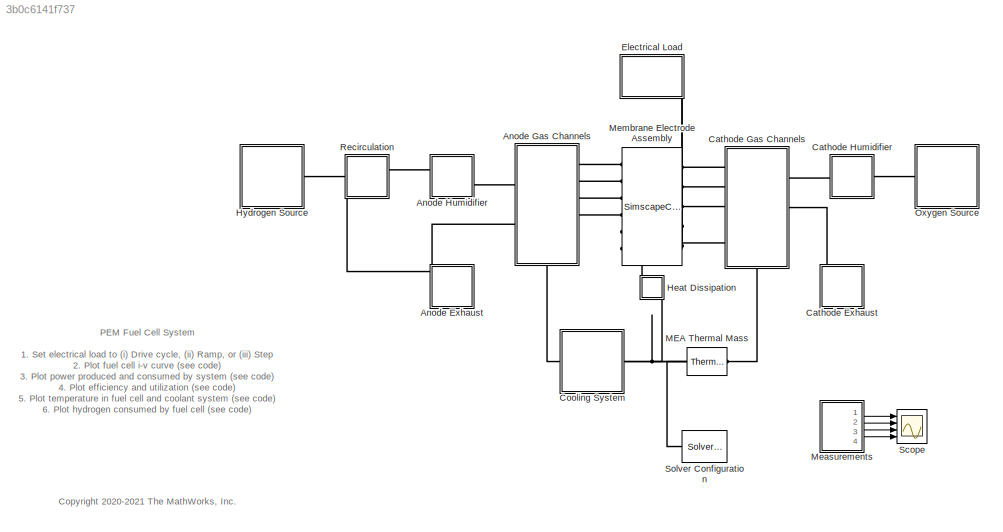
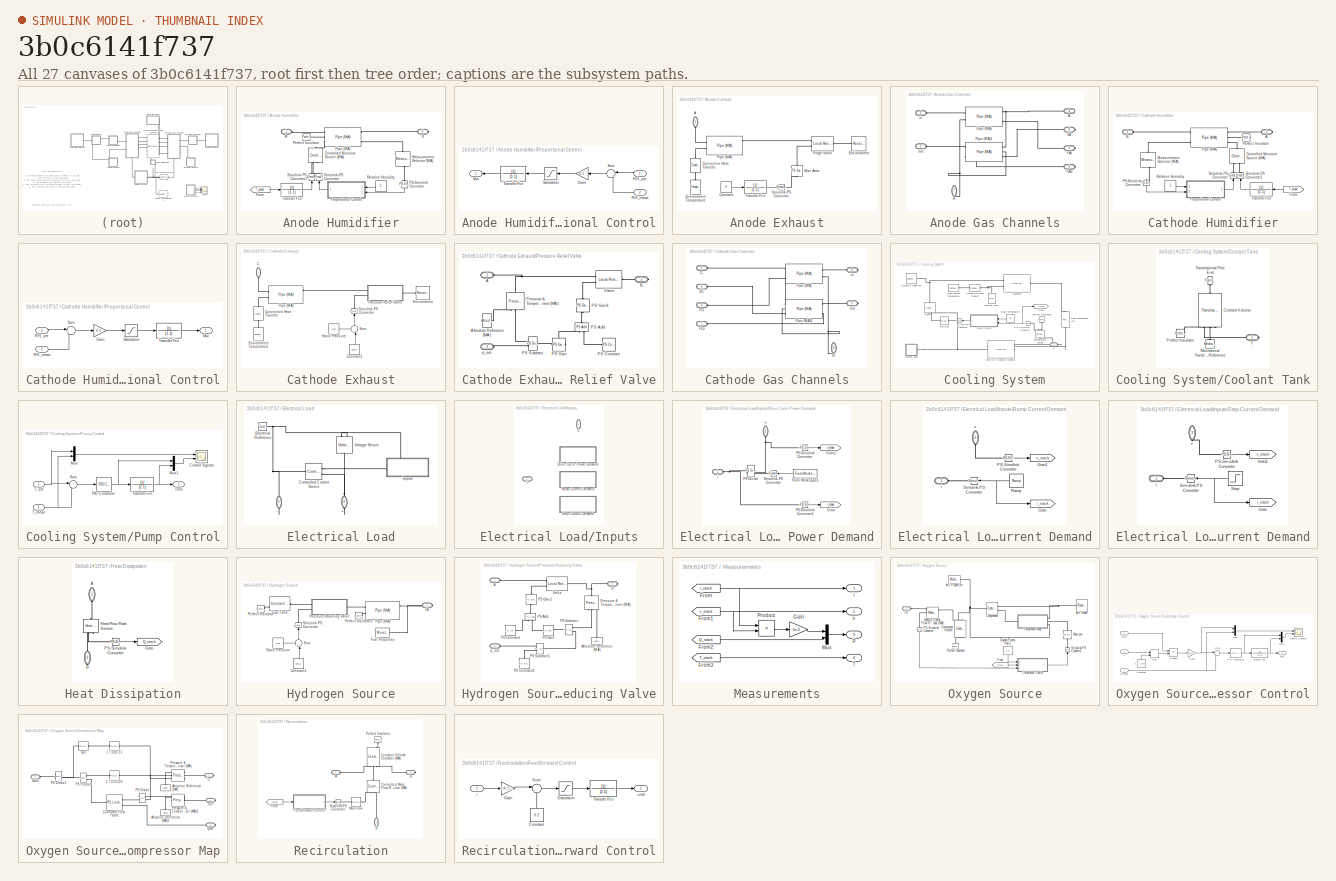
[diagram: thumbnail index - all 27 canvases of the model, root first then tree order]
MODEL slx_3b0c6141f737
KIND model
CONFIG AbsTol = 1e-3
CONFIG EnableMultiTasking = off
CONFIG FixedStep = auto
CONFIG MaxStep = auto
CONFIG MinStep = auto
CONFIG RelTol = 1e-3
CONFIG SampleTimeConstraint = Unconstrained
CONFIG SolverName = VariableStepAuto
CONFIG StartTime = 0.0
CONFIG StopTime = 2500
WORKSPACE source: external: MATLAB File  (data not in archive)
BLOCK [SubSystem] Anode Exhaust
  PortSchema = {"entries":[{"content":{"sides":[{"content":{"connectorIds":[]},"type":"ConnectorPlacement.EquallySpacedRectSide","uuid":"6344d1cf-22ea-4a51-9588-07afca0fac15"},{"content":{"connectorIds":[],"side":"RIGHT"},"type":"ConnectorPlacement.EquallySpacedRectSide","uuid":"a3908f81-9410-4056-87cd-9faba76d3fb8"},{"content":{"connectorIds":["LConn1"],"side":"TOP"},"type":"ConnectorPlacement.EquallySpacedRect...<+237ch>
  Ports = [0, 0, 0, 0, 0, 1]
  RequestExecContextInheritance = off
  Tag = PublishSubsystem
BLOCK [PMIOPort] Anode Exhaust/A
  NameLocation = right
  Side = Left
BLOCK [Constant] Anode Exhaust/Constant
  Value = 0
BLOCK [Reference] Anode Exhaust/Convective Heat Transfer  REF=fl_lib/Thermal/Thermal Elements/Convective Heat
Transfer
  NameLocation = right
  Ports = [0, 0, 0, 0, 0, 1, 1]
  SourceBlock = fl_lib/Thermal/Thermal Elements/Convective Heat\nTransfer
  SourceProductBaseCode = PW,SS,VE
  SourceType = Convective Heat\nTransfer
BLOCK [Reference] Anode Exhaust/Environment  REF=fl_lib/Moist Air/Elements/Reservoir (MA)
  Ports = [0, 0, 0, 0, 0, 1]
  SourceBlock = fl_lib/Moist Air/Elements/Reservoir (MA)
  SourceProductBaseCode = PW,SS,VE
  SourceType = Reservoir (MA)
BLOCK [Reference] Anode Exhaust/Environment Temperature  REF=fl_lib/Thermal/Thermal Sources/Temperature Source
  NameLocation = left
  Ports = [0, 0, 0, 0, 0, 1]
  SourceBlock = fl_lib/Thermal/Thermal Sources/Temperature Source
  SourceProductBaseCode = PW,SS,VE
  SourceType = Temperature Source
BLOCK [Reference] Anode Exhaust/Max Area  REF=fl_lib/Physical Signals/Functions/PS Gain
  NameLocation = right
  Ports = [0, 0, 0, 0, 0, 1, 1]
  SourceBlock = fl_lib/Physical Signals/Functions/PS Gain
  SourceProductBaseCode = PW,SS,VE
  SourceType = PS Gain
BLOCK [Reference] Anode Exhaust/Pipe (MA)  REF=fl_lib/Moist Air/Elements/Pipe (MA)
  Ports = [0, 0, 0, 0, 0, 2, 3]
  SourceBlock = fl_lib/Moist Air/Elements/Pipe (MA)
  SourceProductBaseCode = PW,SS,VE
  SourceType = Pipe (MA)
BLOCK [Reference] Anode Exhaust/Purge Valve  REF=fl_lib/Moist Air/Elements/Local Restriction
(MA)
  Ports = [0, 0, 0, 0, 0, 2, 1]
  SourceBlock = fl_lib/Moist Air/Elements/Local Restriction\n(MA)
  SourceProductBaseCode = PW,SS,VE
  SourceType = Local Restriction\n(MA)
BLOCK [Reference] Anode Exhaust/Simulink-PS Converter  REF=nesl_utility/Simulink-PS
Converter
  Ports = [1, 0, 0, 0, 0, 0, 1]
  SourceBlock = nesl_utility/Simulink-PS\nConverter
  SourceProductBaseCode = SS,PW,VE
  SourceType = Simulink-PS\nConverter
BLOCK [TransferFcn] Anode Exhaust/Transfer Fcn
  Denominator = [1 1]
BLOCK [SubSystem] Anode Gas Channels
  NameLocation = top
  PortSchema = {"entries":[{"content":{"sides":[{"content":{"connectorIds":["LConn1","LConn2"]},"type":"ConnectorPlacement.EquallySpacedRectSide","uuid":"f0c92738-2de1-40ac-9e4a-670524600aa2"},{"content":{"connectorIds":["RConn1","RConn2","RConn3","RConn4"],"side":"RIGHT"},"type":"ConnectorPlacement.EquallySpacedRectSide","uuid":"f0ed995d-2dce-4bd6-9faa-b1cb502a30b1"},{"content":{"connectorIds":[],"side":"TOP"},...<+433ch>
  Ports = [0, 0, 0, 0, 0, 2, 5]
  RequestExecContextInheritance = off
  Tag = PublishSubsystem
BLOCK [PMIOPort] Anode Gas Channels/A
  Port = 3
  Side = Right
BLOCK [PMIOPort] Anode Gas Channels/FAi
  Port = 5
  Side = Right
BLOCK [PMIOPort] Anode Gas Channels/FAo
  Port = 6
  Side = Right
BLOCK [PMIOPort] Anode Gas Channels/H
  NameLocation = left
  Port = 7
  Side = Right
BLOCK [Reference] Anode Gas Channels/Pipe (MA)  REF=fl_lib/Moist Air/Elements/Pipe (MA)
  Ports = [0, 0, 0, 0, 0, 2, 3]
  SourceBlock = fl_lib/Moist Air/Elements/Pipe (MA)
  SourceProductBaseCode = PW,SS,VE
  SourceType = Pipe (MA)
BLOCK [Reference] Anode Gas Channels/Pipe (MA)1  REF=fl_lib/Moist Air/Elements/Pipe (MA)
  Ports = [0, 0, 0, 0, 0, 3, 3]
  SourceBlock = fl_lib/Moist Air/Elements/Pipe (MA)
  SourceProductBaseCode = PW,SS,VE
  SourceType = Pipe (MA)
BLOCK [PMIOPort] Anode Gas Channels/SA
  Port = 4
  Side = Right
BLOCK [PMIOPort] Anode Gas Channels/in
  Side = Left
BLOCK [PMIOPort] Anode Gas Channels/out
  Port = 2
  Side = Left
BLOCK [SubSystem] Anode Humidifier
  NameLocation = top
  Ports = [0, 0, 0, 0, 0, 1, 1]
  RequestExecContextInheritance = off
  Tag = PublishSubsystem
BLOCK [PMIOPort] Anode Humidifier/A
  Side = Left
BLOCK [PMIOPort] Anode Humidifier/B
  Port = 2
  Side = Right
BLOCK [Reference] Anode Humidifier/Controlled Moisture Source (MA)  REF=fl_lib/Moist Air/Sources/Moisture & Trace Gas
Sources/Controlled Moisture
Source (MA)
  NameLocation = left
  Ports = [0, 0, 0, 0, 0, 1, 2]
  SourceBlock = fl_lib/Moist Air/Sources/Moisture & Trace Gas\nSources/Controlled Moisture\nSource (MA)
  SourceProductBaseCode = PW,SS,VE
  SourceType = Controlled Moisture\nSource (MA)
BLOCK [From] Anode Humidifier/From
  GotoTag = T_stack
  TagVisibility = global
BLOCK [Reference] Anode Humidifier/Measurement Selector (MA)  REF=fl_lib/Moist Air/Sensors/Measurement Selector
(MA)
  NameLocation = right
  Ports = [0, 0, 0, 0, 0, 1, 4]
  SourceBlock = fl_lib/Moist Air/Sensors/Measurement Selector\n(MA)
  SourceProductBaseCode = PW,SS,VE
  SourceType = Measurement Selector\n(MA)
BLOCK [Reference] Anode Humidifier/PS-Simulink Converter  REF=nesl_utility/PS-Simulink
Converter
  NameLocation = right
  Ports = [0, 1, 0, 0, 0, 1]
  SourceBlock = nesl_utility/PS-Simulink\nConverter
  SourceProductBaseCode = SS,PW,VE
  SourceType = PS-Simulink\nConverter
BLOCK [Reference] Anode Humidifier/Perfect Insulator  REF=fl_lib/Thermal/Thermal Elements/Perfect Insulator
  Ports = [0, 0, 0, 0, 0, 1]
  SourceBlock = fl_lib/Thermal/Thermal Elements/Perfect Insulator
  SourceProductBaseCode = PW,SS,VE
  SourceType = Perfect Insulator
BLOCK [Reference] Anode Humidifier/Pipe (MA)  REF=fl_lib/Moist Air/Elements/Pipe (MA)
  Ports = [0, 0, 0, 0, 0, 3, 3]
  SourceBlock = fl_lib/Moist Air/Elements/Pipe (MA)
  SourceProductBaseCode = PW,SS,VE
  SourceType = Pipe (MA)
BLOCK [SubSystem] Anode Humidifier/Proportional Control
  Ports = [2, 1]
  RequestExecContextInheritance = off
BLOCK [Gain] Anode Humidifier/Proportional Control/Gain
  Gain = 0.1
BLOCK [Outport] Anode Humidifier/Proportional Control/Mw
BLOCK [Inport] Anode Humidifier/Proportional Control/RH_meas
  Port = 2
BLOCK [Inport] Anode Humidifier/Proportional Control/RH_set
BLOCK [Saturate] Anode Humidifier/Proportional Control/Saturation
  LowerLimit = 0
  UpperLimit = inf
  ZeroCross = off
BLOCK [Sum] Anode Humidifier/Proportional Control/Sum
  Inputs = |+-
  Ports = [2, 1]
BLOCK [TransferFcn] Anode Humidifier/Proportional Control/Transfer Fcn
  Denominator = [1 1]
BLOCK [Constant] Anode Humidifier/Relative Humidity
  NameLocation = top
BLOCK [Reference] Anode Humidifier/Simulink-PS Converter  REF=nesl_utility/Simulink-PS
Converter
  NameLocation = right
  Ports = [1, 0, 0, 0, 0, 0, 1]
  SourceBlock = nesl_utility/Simulink-PS\nConverter
  SourceProductBaseCode = SS,PW,VE
  SourceType = Simulink-PS\nConverter
BLOCK [Reference] Anode Humidifier/Simulink-PS Converter1  REF=nesl_utility/Simulink-PS
Converter
  NameLocation = right
  Ports = [1, 0, 0, 0, 0, 0, 1]
  SourceBlock = nesl_utility/Simulink-PS\nConverter
  SourceProductBaseCode = SS,PW,VE
  SourceType = Simulink-PS\nConverter
BLOCK [TransferFcn] Anode Humidifier/Transfer Fcn
  Denominator = [1 1]
BLOCK [SubSystem] Cathode Exhaust
  PortSchema = {"entries":[{"content":{"sides":[{"content":{"connectorIds":[]},"type":"ConnectorPlacement.EquallySpacedRectSide","uuid":"6344d1cf-22ea-4a51-9588-07afca0fac15"},{"content":{"connectorIds":[],"side":"RIGHT"},"type":"ConnectorPlacement.EquallySpacedRectSide","uuid":"a3908f81-9410-4056-87cd-9faba76d3fb8"},{"content":{"connectorIds":["LConn1"],"side":"TOP"},"type":"ConnectorPlacement.EquallySpacedRect...<+237ch>
  Ports = [0, 0, 0, 0, 0, 1]
  RequestExecContextInheritance = off
  Tag = PublishSubsystem
BLOCK [PMIOPort] Cathode Exhaust/C
  NameLocation = right
  Side = Left
BLOCK [Constant] Cathode Exhaust/Constant1
  NameLocation = right
  Value = env_p
BLOCK [Reference] Cathode Exhaust/Convective Heat Transfer  REF=fl_lib/Thermal/Thermal Elements/Convective Heat
Transfer
  NameLocation = right
  Ports = [0, 0, 0, 0, 0, 1, 1]
  SourceBlock = fl_lib/Thermal/Thermal Elements/Convective Heat\nTransfer
  SourceProductBaseCode = PW,SS,VE
  SourceType = Convective Heat\nTransfer
BLOCK [Reference] Cathode Exhaust/Environment  REF=fl_lib/Moist Air/Elements/Reservoir (MA)
  Ports = [0, 0, 0, 0, 0, 1]
  SourceBlock = fl_lib/Moist Air/Elements/Reservoir (MA)
  SourceProductBaseCode = PW,SS,VE
  SourceType = Reservoir (MA)
BLOCK [Reference] Cathode Exhaust/Environment Temperature  REF=fl_lib/Thermal/Thermal Sources/Temperature Source
  NameLocation = left
  Ports = [0, 0, 0, 0, 0, 1]
  SourceBlock = fl_lib/Thermal/Thermal Sources/Temperature Source
  SourceProductBaseCode = PW,SS,VE
  SourceType = Temperature Source
BLOCK [Reference] Cathode Exhaust/Pipe (MA)  REF=fl_lib/Moist Air/Elements/Pipe (MA)
  Ports = [0, 0, 0, 0, 0, 2, 3]
  SourceBlock = fl_lib/Moist Air/Elements/Pipe (MA)
  SourceProductBaseCode = PW,SS,VE
  SourceType = Pipe (MA)
BLOCK [SubSystem] Cathode Exhaust/Pressure Relief Valve
  Ports = [0, 0, 0, 0, 0, 2, 1]
  RequestExecContextInheritance = off
  Tag = PublishSubsystem
BLOCK [PMIOPort] Cathode Exhaust/Pressure Relief Valve/A
  Side = Left
BLOCK [Reference] Cathode Exhaust/Pressure Relief Valve/Absolute Reference (MA)  REF=fl_lib/Moist Air/Elements/Absolute Reference
(MA)
  Ports = [0, 0, 0, 0, 0, 1]
  SourceBlock = fl_lib/Moist Air/Elements/Absolute Reference\n(MA)
  SourceProductBaseCode = PW,SS,VE
  SourceType = Absolute Reference\n(MA)
BLOCK [PMIOPort] Cathode Exhaust/Pressure Relief Valve/B
  Port = 2
  Side = Right
BLOCK [Reference] Cathode Exhaust/Pressure Relief Valve/PS Add  REF=fl_lib/Physical Signals/Functions/PS Add
  NameLocation = right
  Ports = [0, 0, 0, 0, 0, 2, 1]
  SourceBlock = fl_lib/Physical Signals/Functions/PS Add
  SourceProductBaseCode = PW,SS,VE
  SourceType = PS Add
BLOCK [Reference] Cathode Exhaust/Pressure Relief Valve/PS Constant  REF=fl_lib/Physical Signals/Sources/PS Constant
  Ports = [0, 0, 0, 0, 0, 0, 1]
  SourceBlock = fl_lib/Physical Signals/Sources/PS Constant
  SourceProductBaseCode = PW,SS,VE
  SourceType = PS Constant
BLOCK [Reference] Cathode Exhaust/Pressure Relief Valve/PS Gain  REF=fl_lib/Physical Signals/Functions/PS Gain
  Ports = [0, 0, 0, 0, 0, 1, 1]
  SourceBlock = fl_lib/Physical Signals/Functions/PS Gain
  SourceProductBaseCode = PW,SS,VE
  SourceType = PS Gain
BLOCK [Reference] Cathode Exhaust/Pressure Relief Valve/PS Gain1  REF=fl_lib/Physical Signals/Functions/PS Gain
  NameLocation = right
  Ports = [0, 0, 0, 0, 0, 1, 1]
  SourceBlock = fl_lib/Physical Signals/Functions/PS Gain
  SourceProductBaseCode = PW,SS,VE
  SourceType = PS Gain
BLOCK [Reference] Cathode Exhaust/Pressure Relief Valve/PS Subtract  REF=fl_lib/Physical Signals/Functions/PS Subtract
  Ports = [0, 0, 0, 0, 0, 2, 1]
  SourceBlock = fl_lib/Physical Signals/Functions/PS Subtract
  SourceProductBaseCode = PW,SS,VE
  SourceType = PS Subtract
BLOCK [Reference] Cathode Exhaust/Pressure Relief Valve/Pressure & Temperature Sensor (MA)  REF=fl_lib/Moist Air/Sensors/Pressure &
Temperature Sensor
(MA)
  NameLocation = right
  Ports = [0, 0, 0, 0, 0, 1, 3]
  SourceBlock = fl_lib/Moist Air/Sensors/Pressure &\nTemperature Sensor\n(MA)
  SourceProductBaseCode = PW,SS,VE
  SourceType = Pressure &\nTemperature Sensor\n(MA)
BLOCK [Reference] Cathode Exhaust/Pressure Relief Valve/Valve  REF=fl_lib/Moist Air/Elements/Local Restriction
(MA)
  Ports = [0, 0, 0, 0, 0, 2, 1]
  SourceBlock = fl_lib/Moist Air/Elements/Local Restriction\n(MA)
  SourceProductBaseCode = PW,SS,VE
  SourceType = Local Restriction\n(MA)
BLOCK [PMIOPort] Cathode Exhaust/Pressure Relief Valve/p_set
  Port = 3
  Side = Left
BLOCK [Reference] Cathode Exhaust/Simulink-PS Converter  REF=nesl_utility/Simulink-PS
Converter
  NameLocation = right
  Ports = [1, 0, 0, 0, 0, 0, 1]
  SourceBlock = nesl_utility/Simulink-PS\nConverter
  SourceProductBaseCode = SS,PW,VE
  SourceType = Simulink-PS\nConverter
BLOCK [Constant] Cathode Exhaust/Stack Pressure
  Value = 0.06
BLOCK [Sum] Cathode Exhaust/Sum
  Inputs = ++|
  NameLocation = right
  Ports = [2, 1]
BLOCK [SubSystem] Cathode Gas Channels
  NameLocation = top
  PortSchema = {"entries":[{"content":{"sides":[{"content":{"connectorIds":["LConn1","LConn2","LConn3","LConn4"]},"type":"ConnectorPlacement.EquallySpacedRectSide","uuid":"d09155df-6760-40de-80f3-d532399b6b43"},{"content":{"connectorIds":["RConn1","RConn2"],"side":"RIGHT"},"type":"ConnectorPlacement.EquallySpacedRectSide","uuid":"8f76bd4e-30c2-4c8b-860a-78c10353bd22"},{"content":{"connectorIds":[],"side":"TOP"},...<+433ch>
  Ports = [0, 0, 0, 0, 0, 4, 3]
  RequestExecContextInheritance = off
  Tag = PublishSubsystem
BLOCK [PMIOPort] Cathode Gas Channels/C
  Side = Left
BLOCK [PMIOPort] Cathode Gas Channels/FCi
  Port = 3
  Side = Left
BLOCK [PMIOPort] Cathode Gas Channels/FCo
  Port = 7
  Side = Left
BLOCK [PMIOPort] Cathode Gas Channels/H
  NameLocation = right
  Port = 6
  Side = Right
BLOCK [Reference] Cathode Gas Channels/Pipe (MA)  REF=fl_lib/Moist Air/Elements/Pipe (MA)
  Ports = [0, 0, 0, 0, 0, 2, 3]
  SourceBlock = fl_lib/Moist Air/Elements/Pipe (MA)
  SourceProductBaseCode = PW,SS,VE
  SourceType = Pipe (MA)
BLOCK [Reference] Cathode Gas Channels/Pipe (MA)1  REF=fl_lib/Moist Air/Elements/Pipe (MA)
  Ports = [0, 0, 0, 0, 0, 3, 3]
  SourceBlock = fl_lib/Moist Air/Elements/Pipe (MA)
  SourceProductBaseCode = PW,SS,VE
  SourceType = Pipe (MA)
BLOCK [PMIOPort] Cathode Gas Channels/SC
  Port = 2
  Side = Left
BLOCK [PMIOPort] Cathode Gas Channels/in
  Port = 4
  Side = Right
BLOCK [PMIOPort] Cathode Gas Channels/out
  Port = 5
  Side = Right
BLOCK [SubSystem] Cathode Humidifier
  NameLocation = top
  Ports = [0, 0, 0, 0, 0, 1, 1]
  RequestExecContextInheritance = off
  Tag = PublishSubsystem
BLOCK [PMIOPort] Cathode Humidifier/A
  Side = Right
BLOCK [PMIOPort] Cathode Humidifier/B
  Port = 2
  Side = Left
BLOCK [Reference] Cathode Humidifier/Controlled Moisture Source (MA)  REF=fl_lib/Moist Air/Sources/Moisture & Trace Gas
Sources/Controlled Moisture
Source (MA)
  NameLocation = left
  Ports = [0, 0, 0, 0, 0, 1, 2]
  SourceBlock = fl_lib/Moist Air/Sources/Moisture & Trace Gas\nSources/Controlled Moisture\nSource (MA)
  SourceProductBaseCode = PW,SS,VE
  SourceType = Controlled Moisture\nSource (MA)
BLOCK [From] Cathode Humidifier/From
  GotoTag = T_stack
  TagVisibility = global
BLOCK [Reference] Cathode Humidifier/Measurement Selector (MA)  REF=fl_lib/Moist Air/Sensors/Measurement Selector
(MA)
  NameLocation = left
  Ports = [0, 0, 0, 0, 0, 1, 4]
  SourceBlock = fl_lib/Moist Air/Sensors/Measurement Selector\n(MA)
  SourceProductBaseCode = PW,SS,VE
  SourceType = Measurement Selector\n(MA)
BLOCK [Reference] Cathode Humidifier/PS-Simulink Converter  REF=nesl_utility/PS-Simulink
Converter
  NameLocation = right
  Ports = [0, 1, 0, 0, 0, 1]
  SourceBlock = nesl_utility/PS-Simulink\nConverter
  SourceProductBaseCode = SS,PW,VE
  SourceType = PS-Simulink\nConverter
BLOCK [Reference] Cathode Humidifier/Perfect Insulator  REF=fl_lib/Thermal/Thermal Elements/Perfect Insulator
  Ports = [0, 0, 0, 0, 0, 1]
  SourceBlock = fl_lib/Thermal/Thermal Elements/Perfect Insulator
  SourceProductBaseCode = PW,SS,VE
  SourceType = Perfect Insulator
BLOCK [Reference] Cathode Humidifier/Pipe (MA)  REF=fl_lib/Moist Air/Elements/Pipe (MA)
  Ports = [0, 0, 0, 0, 0, 3, 3]
  SourceBlock = fl_lib/Moist Air/Elements/Pipe (MA)
  SourceProductBaseCode = PW,SS,VE
  SourceType = Pipe (MA)
BLOCK [SubSystem] Cathode Humidifier/Proportional Control
  Ports = [2, 1]
  RequestExecContextInheritance = off
BLOCK [Gain] Cathode Humidifier/Proportional Control/Gain
  Gain = 0.1
BLOCK [Outport] Cathode Humidifier/Proportional Control/Mw
BLOCK [Inport] Cathode Humidifier/Proportional Control/RH_meas
  Port = 2
BLOCK [Inport] Cathode Humidifier/Proportional Control/RH_set
BLOCK [Saturate] Cathode Humidifier/Proportional Control/Saturation
  LowerLimit = 0
  UpperLimit = inf
  ZeroCross = off
BLOCK [Sum] Cathode Humidifier/Proportional Control/Sum
  Inputs = |+-
  Ports = [2, 1]
BLOCK [TransferFcn] Cathode Humidifier/Proportional Control/Transfer Fcn
  Denominator = [1 1]
BLOCK [Constant] Cathode Humidifier/Relative Humidity
  NameLocation = top
BLOCK [Reference] Cathode Humidifier/Simulink-PS Converter  REF=nesl_utility/Simulink-PS
Converter
  NameLocation = right
  Ports = [1, 0, 0, 0, 0, 0, 1]
  SourceBlock = nesl_utility/Simulink-PS\nConverter
  SourceProductBaseCode = SS,PW,VE
  SourceType = Simulink-PS\nConverter
BLOCK [Reference] Cathode Humidifier/Simulink-PS Converter1  REF=nesl_utility/Simulink-PS
Converter
  NameLocation = right
  Ports = [1, 0, 0, 0, 0, 0, 1]
  SourceBlock = nesl_utility/Simulink-PS\nConverter
  SourceProductBaseCode = SS,PW,VE
  SourceType = Simulink-PS\nConverter
BLOCK [TransferFcn] Cathode Humidifier/Transfer Fcn
  Denominator = [1 1]
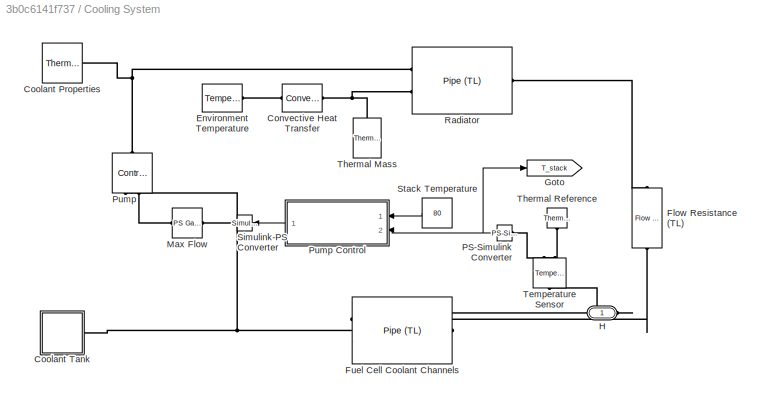
BLOCK [SubSystem] Cooling System
  Ports = [0, 0, 0, 0, 0, 0, 1]
  RequestExecContextInheritance = off
  Tag = PublishSubsystem
BLOCK [Reference] Cooling System/Convective Heat Transfer  REF=fl_lib/Thermal/Thermal Elements/Convective Heat
Transfer
  Ports = [0, 0, 0, 0, 0, 1, 1]
  SourceBlock = fl_lib/Thermal/Thermal Elements/Convective Heat\nTransfer
  SourceProductBaseCode = PW,SS,VE
  SourceType = Convective Heat\nTransfer
BLOCK [Reference] Cooling System/Coolant Properties  REF=fl_lib/Thermal Liquid/Utilities/Thermal Liquid
Settings (TL)
  Ports = [0, 0, 0, 0, 0, 0, 1]
  SourceBlock = fl_lib/Thermal Liquid/Utilities/Thermal Liquid\nSettings (TL)
  SourceProductBaseCode = PW,SS,VE
  SourceType = Thermal Liquid\nSettings (TL)
BLOCK [SubSystem] Cooling System/Coolant Tank
  Ports = [0, 0, 0, 0, 0, 0, 1]
  RequestExecContextInheritance = off
  Tag = PublishSubsystem
BLOCK [Reference] Cooling System/Coolant Tank/Coolant Volume  REF=fl_lib/Thermal Liquid/Elements/Translational
Mechanical Converter
(TL)
  NameLocation = right
  Ports = [0, 0, 0, 0, 0, 3, 1]
  SourceBlock = fl_lib/Thermal Liquid/Elements/Translational\nMechanical Converter\n(TL)
  SourceProductBaseCode = PW,SS,VE
  SourceType = Translational\nMechanical Converter\n(TL)
BLOCK [Reference] Cooling System/Coolant Tank/Mechanical Translational Reference  REF=fl_lib/Mechanical/Translational
Elements/Mechanical
Translational
Reference
  NameLocation = right
  Ports = [0, 0, 0, 0, 0, 1]
  SourceBlock = fl_lib/Mechanical/Translational\nElements/Mechanical\nTranslational\nReference
  SourceProductBaseCode = PW,SS,VE
  SourceType = Mechanical\nTranslational\nReference
BLOCK [Reference] Cooling System/Coolant Tank/Perfect Insulator  REF=fl_lib/Thermal/Thermal Elements/Perfect Insulator
  Ports = [0, 0, 0, 0, 0, 1]
  SourceBlock = fl_lib/Thermal/Thermal Elements/Perfect Insulator
  SourceProductBaseCode = PW,SS,VE
  SourceType = Perfect Insulator
BLOCK [PMIOPort] Cooling System/Coolant Tank/T
  Side = Right
BLOCK [Reference] Cooling System/Coolant Tank/Translational Free End  REF=fl_lib/Mechanical/Translational
Elements/Translational Free
End
  NameLocation = left
  Ports = [0, 0, 0, 0, 0, 1]
  SourceBlock = fl_lib/Mechanical/Translational\nElements/Translational Free\nEnd
  SourceProductBaseCode = PW,SS,VE
  SourceType = Translational Free\nEnd
BLOCK [Reference] Cooling System/Environment Temperature  REF=fl_lib/Thermal/Thermal Sources/Temperature Source
  Ports = [0, 0, 0, 0, 0, 1]
  SourceBlock = fl_lib/Thermal/Thermal Sources/Temperature Source
  SourceProductBaseCode = PW,SS,VE
  SourceType = Temperature Source
BLOCK [Reference] Cooling System/Flow Resistance (TL)  REF=fl_lib/Thermal Liquid/Elements/Flow Resistance (TL)
  NameLocation = right
  Ports = [0, 0, 0, 0, 0, 1, 1]
  SourceBlock = fl_lib/Thermal Liquid/Elements/Flow Resistance (TL)
  SourceProductBaseCode = PW,SS,VE
  SourceType = Flow Resistance (TL)
BLOCK [Reference] Cooling System/Fuel Cell Coolant Channels  REF=fl_lib/Thermal Liquid/Elements/Pipe (TL)
  Ports = [0, 0, 0, 0, 0, 2, 1]
  SourceBlock = fl_lib/Thermal Liquid/Elements/Pipe (TL)
  SourceProductBaseCode = PW,SS,VE
  SourceType = Pipe (TL)
BLOCK [Goto] Cooling System/Goto
  GotoTag = T_stack
  TagVisibility = global
BLOCK [PMIOPort] Cooling System/H
  Side = Right
BLOCK [Reference] Cooling System/Max Flow  REF=fl_lib/Physical Signals/Functions/PS Gain
  Ports = [0, 0, 0, 0, 0, 1, 1]
  SourceBlock = fl_lib/Physical Signals/Functions/PS Gain
  SourceProductBaseCode = PW,SS,VE
  SourceType = PS Gain
BLOCK [Reference] Cooling System/PS-Simulink Converter  REF=nesl_utility/PS-Simulink
Converter
  Ports = [0, 1, 0, 0, 0, 1]
  SourceBlock = nesl_utility/PS-Simulink\nConverter
  SourceProductBaseCode = SS,PW,VE
  SourceType = PS-Simulink\nConverter
BLOCK [Reference] Cooling System/Pump  REF=fl_lib/Thermal Liquid/Sources/Controlled Mass Flow
Rate Source (TL)
  NameLocation = left
  Ports = [0, 0, 0, 0, 0, 2, 1]
  SourceBlock = fl_lib/Thermal Liquid/Sources/Controlled Mass Flow\nRate Source (TL)
  SourceProductBaseCode = PW,SS,VE
  SourceType = Controlled Mass Flow\nRate Source (TL)
BLOCK [SubSystem] Cooling System/Pump Control
  Ports = [2, 1]
  RequestExecContextInheritance = off
BLOCK [Scope] Cooling System/Pump Control/Control Signals
  Floating = off
  NumInputPorts = 2
  Ports = [2]
  ScopeSpecificationString = Simulink.scopes.TimeScopeBlockCfg('CurrentConfiguration', extmgr.ConfigurationSet(extmgr.Configuration('Core','General UI',true),extmgr.Configuration('Core','Source UI',true),extmgr.Configuration('Sources','WiredSimulink',true,'DataLoggingVariableName','ScopeData1'),extmgr.Configuration('Visuals','Time Domain',true,'SerializedDisplays',{struct('MinYLimReal','12.33618','MaxYLimReal','88.97437','YLa...<+2132ch>
BLOCK [Mux] Cooling System/Pump Control/Mux
  DisplayOption = bar
  Inputs = 2
  Ports = [2, 1]
BLOCK [Mux] Cooling System/Pump Control/Mux1
  DisplayOption = bar
  Inputs = 2
  Ports = [2, 1]
BLOCK [Reference] Cooling System/Pump Control/PID Controller  REF=slpidlib/PID Controller
  Ports = [1, 1]
  SourceBlock = slpidlib/PID Controller
  SourceProductBaseCode = SL
  SourceType = PID 1dof
BLOCK [Sum] Cooling System/Pump Control/Sum
  Inputs = |-+
  Ports = [2, 1]
BLOCK [Inport] Cooling System/Pump Control/T_meas
  Port = 2
BLOCK [Inport] Cooling System/Pump Control/T_set
BLOCK [TransferFcn] Cooling System/Pump Control/Transfer Fcn
  Denominator = [2 1]
BLOCK [Outport] Cooling System/Pump Control/cmd
BLOCK [Reference] Cooling System/Radiator  REF=fl_lib/Thermal Liquid/Elements/Pipe (TL)
  Ports = [0, 0, 0, 0, 0, 2, 1]
  SourceBlock = fl_lib/Thermal Liquid/Elements/Pipe (TL)
  SourceProductBaseCode = PW,SS,VE
  SourceType = Pipe (TL)
BLOCK [Reference] Cooling System/Simulink-PS Converter  REF=nesl_utility/Simulink-PS
Converter
  Ports = [1, 0, 0, 0, 0, 0, 1]
  SourceBlock = nesl_utility/Simulink-PS\nConverter
  SourceProductBaseCode = SS,PW,VE
  SourceType = Simulink-PS\nConverter
BLOCK [Constant] Cooling System/Stack Temperature
  NameLocation = top
  Value = 80
BLOCK [Reference] Cooling System/Temperature Sensor  REF=fl_lib/Thermal/Thermal Sensors/Temperature Sensor
  NameLocation = left
  Ports = [0, 0, 0, 0, 0, 1, 2]
  SourceBlock = fl_lib/Thermal/Thermal Sensors/Temperature Sensor
  SourceProductBaseCode = PW,SS,VE
  SourceType = Temperature Sensor
BLOCK [Reference] Cooling System/Thermal Mass  REF=fl_lib/Thermal/Thermal Elements/Thermal Mass
  NameLocation = right
  Ports = [0, 0, 0, 0, 0, 1]
  SourceBlock = fl_lib/Thermal/Thermal Elements/Thermal Mass
  SourceProductBaseCode = PW,SS,VE
  SourceType = Thermal Mass
BLOCK [Reference] Cooling System/Thermal Reference  REF=fl_lib/Thermal/Thermal Elements/Thermal Reference
  NameLocation = left
  Ports = [0, 0, 0, 0, 0, 1]
  SourceBlock = fl_lib/Thermal/Thermal Elements/Thermal Reference
  SourceProductBaseCode = PW,SS,VE
  SourceType = Thermal Reference
BLOCK [SubSystem] Electrical Load
  NameLocation = right
  PortSchema = {"entries":[{"content":{"sides":[{"content":{"connectorIds":[]},"type":"ConnectorPlacement.EquallySpacedRectSide","uuid":"cf26c57a-4aaa-4eca-a1cf-dab3379228b7"},{"content":{"connectorIds":[],"side":"RIGHT"},"type":"ConnectorPlacement.EquallySpacedRectSide","uuid":"bd4a28c6-f8d3-4492-9f61-a12eb17ccdd3"},{"content":{"connectorIds":[],"side":"TOP"},"type":"ConnectorPlacement.EquallySpacedRectSide","u...<+390ch>
  Ports = [0, 0, 0, 0, 0, 0, 2]
  RequestExecContextInheritance = off
  Tag = PublishSubsystem
BLOCK [PMIOPort] Electrical Load/+
  NameLocation = right
  Port = 2
  Side = Right
BLOCK [PMIOPort] Electrical Load/-
  NameLocation = right
  Side = Right
BLOCK [Reference] Electrical Load/Controlled Current Source  REF=fl_lib/Electrical/Electrical Sources/Controlled Current
Source
  Ports = [0, 0, 0, 0, 0, 1, 2]
  SourceBlock = fl_lib/Electrical/Electrical Sources/Controlled Current\nSource
  SourceProductBaseCode = PW,SS,VE
  SourceType = Controlled Current\nSource
BLOCK [Reference] Electrical Load/Electrical Reference  REF=fl_lib/Electrical/Electrical Elements/Electrical Reference
  Ports = [0, 0, 0, 0, 0, 1]
  SourceBlock = fl_lib/Electrical/Electrical Elements/Electrical Reference
  SourceProductBaseCode = PW,SS,VE
  SourceType = Electrical Reference
BLOCK [SubSystem] Electrical Load/Inputs
  LabelModeActiveChoice = Drive cycle
  PortSchema = {"entries":[{"content":{"sides":[{"content":{"connectorIds":["LConn1"]},"type":"ConnectorPlacement.EquallySpacedRectSide","uuid":"316ab41f-9548-4c29-941b-82cd3006a9cc"},{"content":{"connectorIds":[],"side":"RIGHT"},"type":"ConnectorPlacement.EquallySpacedRectSide","uuid":"21ddf6a1-5f8a-47a4-ab15-3c27c3a556ce"},{"content":{"connectorIds":["LConn2"],"side":"TOP"},"type":"ConnectorPlacement.EquallySp...<+245ch>  <repeated x4 — deduplicated; at blocks: Inputs, Drive Cycle Power Demand, Ramp Current Demand, Step Current Demand>
  Ports = [0, 0, 0, 0, 0, 2]
  RequestExecContextInheritance = off
  Variant = on
  VariantControlMode = label
BLOCK [SubSystem] Electrical Load/Inputs/Drive Cycle Power Demand
  Ports = [0, 0, 0, 0, 0, 2]
  RequestExecContextInheritance = off
  VariantControl = Drive cycle
BLOCK [FromWorkspace] Electrical Load/Inputs/Drive Cycle Power Demand/From Workspace
  VariableName = [drive_cycle_time, drive_cycle_power]
BLOCK [Goto] Electrical Load/Inputs/Drive Cycle Power Demand/Goto
  GotoTag = i_stack
  TagVisibility = global
BLOCK [Goto] Electrical Load/Inputs/Drive Cycle Power Demand/Goto1
  GotoTag = v_stack
  TagVisibility = global
BLOCK [Reference] Electrical Load/Inputs/Drive Cycle Power Demand/PS Divide  REF=fl_lib/Physical Signals/Functions/PS Divide
  Ports = [0, 0, 0, 0, 0, 2, 1]
  SourceBlock = fl_lib/Physical Signals/Functions/PS Divide
  SourceProductBaseCode = PW,SS,VE
  SourceType = PS Divide
BLOCK [Reference] Electrical Load/Inputs/Drive Cycle Power Demand/PS-Simulink Converter  REF=nesl_utility/PS-Simulink
Converter
  Ports = [0, 1, 0, 0, 0, 1]
  SourceBlock = nesl_utility/PS-Simulink\nConverter
  SourceProductBaseCode = SS,PW,VE
  SourceType = PS-Simulink\nConverter
BLOCK [Reference] Electrical Load/Inputs/Drive Cycle Power Demand/PS-Simulink Converter1  REF=nesl_utility/PS-Simulink
Converter
  Ports = [0, 1, 0, 0, 0, 1]
  SourceBlock = nesl_utility/PS-Simulink\nConverter
  SourceProductBaseCode = SS,PW,VE
  SourceType = PS-Simulink\nConverter
BLOCK [Reference] Electrical Load/Inputs/Drive Cycle Power Demand/Simulink-PS Converter  REF=nesl_utility/Simulink-PS
Converter
  Ports = [1, 0, 0, 0, 0, 0, 1]
  SourceBlock = nesl_utility/Simulink-PS\nConverter
  SourceProductBaseCode = SS,PW,VE
  SourceType = Simulink-PS\nConverter
BLOCK [PMIOPort] Electrical Load/Inputs/Drive Cycle Power Demand/i
  Side = Left
BLOCK [PMIOPort] Electrical Load/Inputs/Drive Cycle Power Demand/v
  NameLocation = right
  Port = 2
  Side = Left
BLOCK [SubSystem] Electrical Load/Inputs/Ramp Current Demand
  Ports = [0, 0, 0, 0, 0, 2]
  RequestExecContextInheritance = off
  VariantControl = Ramp
BLOCK [Goto] Electrical Load/Inputs/Ramp Current Demand/Goto
  GotoTag = i_stack
  TagVisibility = global
BLOCK [Goto] Electrical Load/Inputs/Ramp Current Demand/Goto1
  GotoTag = v_stack
  TagVisibility = global
BLOCK [Reference] Electrical Load/Inputs/Ramp Current Demand/PS-Simulink Converter  REF=nesl_utility/PS-Simulink
Converter
  Ports = [0, 1, 0, 0, 0, 1]
  SourceBlock = nesl_utility/PS-Simulink\nConverter
  SourceProductBaseCode = SS,PW,VE
  SourceType = PS-Simulink\nConverter
BLOCK [Reference] Electrical Load/Inputs/Ramp Current Demand/Ramp  REF=simulink/Sources/Ramp
  Ports = [0, 1]
  SourceBlock = simulink/Sources/Ramp
  SourceProductBaseCode = SL
  SourceType = Ramp
BLOCK [Reference] Electrical Load/Inputs/Ramp Current Demand/Simulink-PS Converter  REF=nesl_utility/Simulink-PS
Converter
  Ports = [1, 0, 0, 0, 0, 0, 1]
  SourceBlock = nesl_utility/Simulink-PS\nConverter
  SourceProductBaseCode = SS,PW,VE
  SourceType = Simulink-PS\nConverter
BLOCK [PMIOPort] Electrical Load/Inputs/Ramp Current Demand/i
  Side = Left
BLOCK [PMIOPort] Electrical Load/Inputs/Ramp Current Demand/v
  NameLocation = right
  Port = 2
  Side = Left
BLOCK [SubSystem] Electrical Load/Inputs/Step Current Demand
  Ports = [0, 0, 0, 0, 0, 2]
  RequestExecContextInheritance = off
  VariantControl = Step
BLOCK [Goto] Electrical Load/Inputs/Step Current Demand/Goto
  GotoTag = i_stack
  TagVisibility = global
BLOCK [Goto] Electrical Load/Inputs/Step Current Demand/Goto1
  GotoTag = v_stack
  TagVisibility = global
BLOCK [Reference] Electrical Load/Inputs/Step Current Demand/PS-Simulink Converter  REF=nesl_utility/PS-Simulink
Converter
  Ports = [0, 1, 0, 0, 0, 1]
  SourceBlock = nesl_utility/PS-Simulink\nConverter
  SourceProductBaseCode = SS,PW,VE
  SourceType = PS-Simulink\nConverter
BLOCK [Reference] Electrical Load/Inputs/Step Current Demand/Simulink-PS Converter  REF=nesl_utility/Simulink-PS
Converter
  Ports = [1, 0, 0, 0, 0, 0, 1]
  SourceBlock = nesl_utility/Simulink-PS\nConverter
  SourceProductBaseCode = SS,PW,VE
  SourceType = Simulink-PS\nConverter
BLOCK [Step] Electrical Load/Inputs/Step Current Demand/Step
  After = 0.5 * stack_iL * stack_area
  SampleTime = 0
  Time = 500
BLOCK [PMIOPort] Electrical Load/Inputs/Step Current Demand/i
  Side = Left
BLOCK [PMIOPort] Electrical Load/Inputs/Step Current Demand/v
  NameLocation = right
  Port = 2
  Side = Left
BLOCK [PMIOPort] Electrical Load/Inputs/i
  Side = Left
BLOCK [PMIOPort] Electrical Load/Inputs/v
  NameLocation = right
  Port = 2
  Side = Left
BLOCK [Reference] Electrical Load/Voltage Sensor  REF=fl_lib/Electrical/Electrical Sensors/Voltage Sensor
  NameLocation = right
  Ports = [0, 0, 0, 0, 0, 1, 2]
  SourceBlock = fl_lib/Electrical/Electrical Sensors/Voltage Sensor
  SourceProductBaseCode = PW,SS,VE
  SourceType = Voltage Sensor
BLOCK [SubSystem] Heat Dissipation
  NameLocation = right
  PortSchema = {"entries":[{"content":{"sides":[{"content":{"connectorIds":[]},"type":"ConnectorPlacement.EquallySpacedRectSide","uuid":"40b2385a-b20e-464f-8016-3228e4acac4a"},{"content":{"connectorIds":[],"side":"RIGHT"},"type":"ConnectorPlacement.EquallySpacedRectSide","uuid":"0e95dc4b-d2da-4ab6-a6e9-e2cb275776ce"},{"content":{"connectorIds":["LConn1"],"side":"TOP"},"type":"ConnectorPlacement.EquallySpacedRect...<+389ch>
  Ports = [0, 0, 0, 0, 0, 1, 1]
  RequestExecContextInheritance = off
BLOCK [PMIOPort] Heat Dissipation/A
  NameLocation = right
  Side = Left
BLOCK [PMIOPort] Heat Dissipation/B
  NameLocation = right
  Port = 2
  Side = Right
BLOCK [Goto] Heat Dissipation/Goto
  GotoTag = Q_stack
  TagVisibility = global
BLOCK [Reference] Heat Dissipation/Heat Flow Rate Sensor  REF=fl_lib/Thermal/Thermal Sensors/Heat Flow Rate
Sensor
  NameLocation = right
  Ports = [0, 0, 0, 0, 0, 1, 2]
  SourceBlock = fl_lib/Thermal/Thermal Sensors/Heat Flow Rate\nSensor
  SourceProductBaseCode = PW,SS,VE
  SourceType = Heat Flow Rate\nSensor
BLOCK [Reference] Heat Dissipation/PS-Simulink Converter  REF=nesl_utility/PS-Simulink
Converter
  Ports = [0, 1, 0, 0, 0, 1]
  SourceBlock = nesl_utility/PS-Simulink\nConverter
  SourceProductBaseCode = SS,PW,VE
  SourceType = PS-Simulink\nConverter
BLOCK [SubSystem] Hydrogen Source
  NameLocation = top
  Ports = [0, 0, 0, 0, 0, 0, 1]
  RequestExecContextInheritance = off
  Tag = PublishSubsystem
BLOCK [Constant] Hydrogen Source/Constant1
  NameLocation = right
  Value = env_p
BLOCK [Reference] Hydrogen Source/Fuel Properties  REF=fl_lib/Moist Air/Utilities/Moist Air Properties
(MA)
  AttributesFormatString = dry air --> N2\nwater vapor --> H2O\ntrace gas --> H2
  Ports = [0, 0, 0, 0, 0, 0, 1]
  SourceBlock = fl_lib/Moist Air/Utilities/Moist Air Properties\n(MA)
  SourceProductBaseCode = PW,SS,VE
  SourceType = Moist Air Properties\n(MA)
BLOCK [Reference] Hydrogen Source/Fuel Tank  REF=fl_lib/Moist Air/Elements/Constant Volume
Chamber (MA)
  Ports = [0, 0, 0, 0, 0, 1, 3]
  SourceBlock = fl_lib/Moist Air/Elements/Constant Volume\nChamber (MA)
  SourceProductBaseCode = PW,SS,VE
  SourceType = Constant Volume\nChamber (MA)
BLOCK [PMIOPort] Hydrogen Source/H2
  Side = Right
BLOCK [Reference] Hydrogen Source/Perfect Insulator  REF=fl_lib/Thermal/Thermal Elements/Perfect Insulator
  Ports = [0, 0, 0, 0, 0, 1]
  SourceBlock = fl_lib/Thermal/Thermal Elements/Perfect Insulator
  SourceProductBaseCode = PW,SS,VE
  SourceType = Perfect Insulator
BLOCK [Reference] Hydrogen Source/Perfect Insulator1  REF=fl_lib/Thermal/Thermal Elements/Perfect Insulator
  Ports = [0, 0, 0, 0, 0, 1]
  SourceBlock = fl_lib/Thermal/Thermal Elements/Perfect Insulator
  SourceProductBaseCode = PW,SS,VE
  SourceType = Perfect Insulator
BLOCK [Reference] Hydrogen Source/Pipe (MA)  REF=fl_lib/Moist Air/Elements/Pipe (MA)
  Ports = [0, 0, 0, 0, 0, 2, 3]
  SourceBlock = fl_lib/Moist Air/Elements/Pipe (MA)
  SourceProductBaseCode = PW,SS,VE
  SourceType = Pipe (MA)
BLOCK [SubSystem] Hydrogen Source/Pressure-Reducing Valve
  Ports = [0, 0, 0, 0, 0, 2, 1]
  RequestExecContextInheritance = off
  Tag = PublishSubsystem
BLOCK [PMIOPort] Hydrogen Source/Pressure-Reducing Valve/A
  Side = Left
BLOCK [Reference] Hydrogen Source/Pressure-Reducing Valve/Absolute Reference (MA)  REF=fl_lib/Moist Air/Elements/Absolute Reference
(MA)
  NameLocation = right
  Ports = [0, 0, 0, 0, 0, 1]
  SourceBlock = fl_lib/Moist Air/Elements/Absolute Reference\n(MA)
  SourceProductBaseCode = PW,SS,VE
  SourceType = Absolute Reference\n(MA)
BLOCK [PMIOPort] Hydrogen Source/Pressure-Reducing Valve/B
  Port = 2
  Side = Right
BLOCK [Reference] Hydrogen Source/Pressure-Reducing Valve/PS Add  REF=fl_lib/Physical Signals/Functions/PS Add
  NameLocation = right
  Ports = [0, 0, 0, 0, 0, 2, 1]
  SourceBlock = fl_lib/Physical Signals/Functions/PS Add
  SourceProductBaseCode = PW,SS,VE
  SourceType = PS Add
BLOCK [Reference] Hydrogen Source/Pressure-Reducing Valve/PS Constant  REF=fl_lib/Physical Signals/Sources/PS Constant
  Ports = [0, 0, 0, 0, 0, 0, 1]
  SourceBlock = fl_lib/Physical Signals/Sources/PS Constant
  SourceProductBaseCode = PW,SS,VE
  SourceType = PS Constant
BLOCK [Reference] Hydrogen Source/Pressure-Reducing Valve/PS Constant1  REF=fl_lib/Physical Signals/Sources/PS Constant
  NameLocation = right
  Ports = [0, 0, 0, 0, 0, 0, 1]
  SourceBlock = fl_lib/Physical Signals/Sources/PS Constant
  SourceProductBaseCode = PW,SS,VE
  SourceType = PS Constant
BLOCK [Reference] Hydrogen Source/Pressure-Reducing Valve/PS Gain  REF=fl_lib/Physical Signals/Functions/PS Gain
  Ports = [0, 0, 0, 0, 0, 1, 1]
  SourceBlock = fl_lib/Physical Signals/Functions/PS Gain
  SourceProductBaseCode = PW,SS,VE
  SourceType = PS Gain
BLOCK [Reference] Hydrogen Source/Pressure-Reducing Valve/PS Gain1  REF=fl_lib/Physical Signals/Functions/PS Gain
  NameLocation = right
  Ports = [0, 0, 0, 0, 0, 1, 1]
  SourceBlock = fl_lib/Physical Signals/Functions/PS Gain
  SourceProductBaseCode = PW,SS,VE
  SourceType = PS Gain
BLOCK [Reference] Hydrogen Source/Pressure-Reducing Valve/PS Subtract  REF=fl_lib/Physical Signals/Functions/PS Subtract
  Ports = [0, 0, 0, 0, 0, 2, 1]
  SourceBlock = fl_lib/Physical Signals/Functions/PS Subtract
  SourceProductBaseCode = PW,SS,VE
  SourceType = PS Subtract
BLOCK [Reference] Hydrogen Source/Pressure-Reducing Valve/PS Subtract1  REF=fl_lib/Physical Signals/Functions/PS Subtract
  Ports = [0, 0, 0, 0, 0, 2, 1]
  SourceBlock = fl_lib/Physical Signals/Functions/PS Subtract
  SourceProductBaseCode = PW,SS,VE
  SourceType = PS Subtract
BLOCK [Reference] Hydrogen Source/Pressure-Reducing Valve/Pressure & Temperature Sensor (MA)  REF=fl_lib/Moist Air/Sensors/Pressure &
Temperature Sensor
(MA)
  NameLocation = right
  Ports = [0, 0, 0, 0, 0, 1, 3]
  SourceBlock = fl_lib/Moist Air/Sensors/Pressure &\nTemperature Sensor\n(MA)
  SourceProductBaseCode = PW,SS,VE
  SourceType = Pressure &\nTemperature Sensor\n(MA)
BLOCK [Reference] Hydrogen Source/Pressure-Reducing Valve/Valve  REF=fl_lib/Moist Air/Elements/Local Restriction
(MA)
  Ports = [0, 0, 0, 0, 0, 2, 1]
  SourceBlock = fl_lib/Moist Air/Elements/Local Restriction\n(MA)
  SourceProductBaseCode = PW,SS,VE
  SourceType = Local Restriction\n(MA)
BLOCK [PMIOPort] Hydrogen Source/Pressure-Reducing Valve/p_set
  Port = 3
  Side = Left
BLOCK [Reference] Hydrogen Source/Simulink-PS Converter  REF=nesl_utility/Simulink-PS
Converter
  NameLocation = right
  Ports = [1, 0, 0, 0, 0, 0, 1]
  SourceBlock = nesl_utility/Simulink-PS\nConverter
  SourceProductBaseCode = SS,PW,VE
  SourceType = Simulink-PS\nConverter
BLOCK [Constant] Hydrogen Source/Stack Pressure
  Value = 0.06
BLOCK [Sum] Hydrogen Source/Sum
  Inputs = ++|
  NameLocation = right
  Ports = [2, 1]
BLOCK [Reference] MEA Thermal Mass  REF=fl_lib/Thermal/Thermal Elements/Thermal Mass
  Ports = [0, 0, 0, 0, 0, 1]
  SourceBlock = fl_lib/Thermal/Thermal Elements/Thermal Mass
  SourceProductBaseCode = PW,SS,VE
  SourceType = Thermal Mass
BLOCK [SubSystem] Measurements
  Ports = [0, 4]
  RequestExecContextInheritance = off
BLOCK [From] Measurements/From
  GotoTag = i_stack
  TagVisibility = global
BLOCK [From] Measurements/From1
  GotoTag = v_stack
  TagVisibility = global
BLOCK [From] Measurements/From2
  GotoTag = Q_stack
  TagVisibility = global
BLOCK [From] Measurements/From3
  GotoTag = T_stack
  TagVisibility = global
BLOCK [Gain] Measurements/Gain
  Gain = 1e-3
BLOCK [Mux] Measurements/Mux
  DisplayOption = bar
  Inputs = 2
  Ports = [2, 1]
BLOCK [Outport] Measurements/P
  Port = 3
BLOCK [Product] Measurements/Product
  Ports = [2, 1]
BLOCK [Outport] Measurements/T
  Port = 4
BLOCK [Outport] Measurements/i
BLOCK [Outport] Measurements/v
  Port = 2
BLOCK [SimscapeComponentBlock] Membrane Electrode Assembly
  ClassName = FuelCell
  ComponentPath = FuelCell
  ComponentVariantNames = ["FuelCell"]
  ComponentVariants = ["FuelCell"]
  CopyFcn = simscape.engine.sli.internal.componentblockcallback(gcbh,'COPY')
  D_H2O_gdl_A = stack_D_gdl
  D_H2O_gdl_A_conf = compiletime
  D_H2O_gdl_A_unit = cm^2/s
  D_H2O_gdl_C = stack_D_gdl
  D_H2O_gdl_C_conf = compiletime
  D_H2O_gdl_C_unit = cm^2/s
  InternalSimscapePortConfiguration = {"Bottom":[{"id":"H","label":"H","type":"foundation.thermal.thermal"}],"Left":[{"id":"A","label":"A","type":"foundation.moist_air.moist_air"},{"id":"SA","label":"SA","type":"foundation.moist_air.moist_air_source"},{"id":"FAi","label":"FAi","type":"input"},{"id":"FAo","label":"FAo","type":"input"}],"Right":[{"id":"C","label":"C","type":"foundation.moist_air.moist_air"},{"id":"SC","label":"SC","type...<+266ch>
  M_membrane = stack_membrane_MW
  M_membrane_conf = compiletime
  M_membrane_unit = kg/mol
  MaskType = Fuel Cell
  N_cell = stack_num_cells
  N_cell_conf = compiletime
  N_cell_unit = 1
  NameLocation = top
  Ports = [0, 0, 0, 0, 0, 6, 5]
  PreCopyFcn = simscape.engine.sli.internal.componentblockcallback(gcbh,'PRECOPY')
  PreDeleteFcn = simscape.engine.sli.internal.componentblockcallback(gcbh,'PREDELETE')
  Q = 0
  Q_nominal_specify = off
  Q_nominal_unit = W
  Q_nominal_value = 1
  Q_priority = None
  Q_specify = off
  Q_unit = W
  RH_acl = 0.4
  RH_acl_nominal_specify = off
  RH_acl_nominal_unit = 1
  RH_acl_nominal_value = 1
  RH_acl_priority = None
  RH_acl_specify = off
  RH_acl_unit = 1
  RH_ccl = 0.5
  RH_ccl_nominal_specify = off
  RH_ccl_nominal_unit = 1
  RH_ccl_nominal_value = 1
  RH_ccl_priority = None
  RH_ccl_specify = off
  RH_ccl_unit = 1
  SchemaVersion = 1
  SourceFile = FuelCell
  alpha = stack_alpha
  alpha_conf = compiletime
  alpha_unit = 1
  area_cell = stack_area
  area_cell_conf = compiletime
  area_cell_unit = cm^2
  i = 0
  iL = stack_iL
  iL_conf = compiletime
  iL_unit = A/cm^2
  i_nominal_specify = off
  i_nominal_unit = A
  i_nominal_value = 1
  i_priority = None
  i_specify = off
  i_unit = A
  io = stack_io
  io_conf = compiletime
  io_unit = A/cm^2
  rho_membrane = stack_membrane_rho
  rho_membrane_conf = compiletime
  rho_membrane_unit = kg/m^3
  t_gdl_A = stack_t_gdl
  t_gdl_A_conf = compiletime
  t_gdl_A_unit = um
  t_gdl_C = stack_t_gdl
  t_gdl_C_conf = compiletime
  t_gdl_C_unit = um
  t_membrane = stack_t_membrane
  t_membrane_conf = compiletime
  t_membrane_unit = um
BLOCK [SubSystem] Oxygen Source
  NameLocation = top
  Ports = [0, 0, 0, 0, 0, 1]
  RequestExecContextInheritance = off
  Tag = PublishSubsystem
BLOCK [Reference] Oxygen Source/Air Intake  REF=fl_lib/Moist Air/Elements/Reservoir (MA)
  Ports = [0, 0, 0, 0, 0, 1]
  SourceBlock = fl_lib/Moist Air/Elements/Reservoir (MA)
  SourceProductBaseCode = PW,SS,VE
  SourceType = Reservoir (MA)
BLOCK [Reference] Oxygen Source/Air Properties  REF=fl_lib/Moist Air/Utilities/Moist Air Properties
(MA)
  AttributesFormatString = dry air --> N2\nwater vapor --> H2O\ntrace gas --> O2
  Ports = [0, 0, 0, 0, 0, 0, 1]
  SourceBlock = fl_lib/Moist Air/Utilities/Moist Air Properties\n(MA)
  SourceProductBaseCode = PW,SS,VE
  SourceType = Moist Air Properties\n(MA)
BLOCK [Reference] Oxygen Source/Compressor  REF=fl_lib/Moist Air/Sources/Controlled Mass Flow
Rate Source (MA)
  Ports = [0, 0, 0, 0, 0, 2, 1]
  SourceBlock = fl_lib/Moist Air/Sources/Controlled Mass Flow\nRate Source (MA)
  SourceProductBaseCode = PW,SS,VE
  SourceType = Controlled Mass Flow\nRate Source (MA)
BLOCK [SubSystem] Oxygen Source/Compressor Control
  Ports = [3, 1]
  RequestExecContextInheritance = off
BLOCK [Constant] Oxygen Source/Compressor Control/Constant
  NameLocation = right
  Value = 0.1 * stack_iL * stack_area
BLOCK [Scope] Oxygen Source/Compressor Control/Control Signals
  Floating = off
  NumInputPorts = 2
  Ports = [2]
  ScopeSpecificationString = Simulink.scopes.TimeScopeBlockCfg('CurrentConfiguration', extmgr.ConfigurationSet(extmgr.Configuration('Core','General UI',true),extmgr.Configuration('Core','Source UI',true),extmgr.Configuration('Sources','WiredSimulink',true,'DataLoggingVariableName','ScopeData2'),extmgr.Configuration('Visuals','Time Domain',true,'SerializedDisplays',{struct('MinYLimReal','-0.01736','MaxYLimReal','0.15625','YLab...<+2126ch>
BLOCK [Inport] Oxygen Source/Compressor Control/M_meas
  Port = 3
BLOCK [Gain] Oxygen Source/Compressor Control/M_set
  Gain = stack_num_cells * 32e-3 / (4*96485) / 0.234
BLOCK [MinMax] Oxygen Source/Compressor Control/Max
  Function = max
  Inputs = 2
  Ports = [2, 1]
  ZeroCross = off
BLOCK [Mux] Oxygen Source/Compressor Control/Mux
  DisplayOption = bar
  Inputs = 2
  Ports = [2, 1]
BLOCK [Mux] Oxygen Source/Compressor Control/Mux1
  DisplayOption = bar
  Inputs = 2
  Ports = [2, 1]
BLOCK [Inport] Oxygen Source/Compressor Control/OER
BLOCK [Reference] Oxygen Source/Compressor Control/PID Controller  REF=slpidlib/PID Controller
  Ports = [1, 1]
  SourceBlock = slpidlib/PID Controller
  SourceProductBaseCode = SL
  SourceType = PID 1dof
BLOCK [Product] Oxygen Source/Compressor Control/Product
  Ports = [2, 1]
BLOCK [Sum] Oxygen Source/Compressor Control/Sum
  Inputs = |+-
  Ports = [2, 1]
BLOCK [TransferFcn] Oxygen Source/Compressor Control/Transfer Fcn
  Denominator = [2 1]
BLOCK [Outport] Oxygen Source/Compressor Control/cmd
BLOCK [Inport] Oxygen Source/Compressor Control/i
  Port = 2
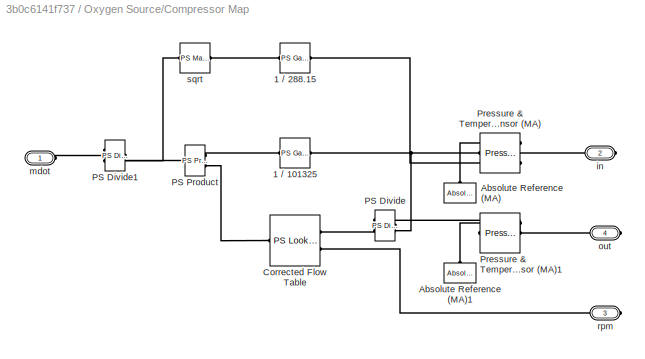
BLOCK [SubSystem] Oxygen Source/Compressor Map
  Ports = [0, 0, 0, 0, 0, 1, 3]
  RequestExecContextInheritance = off
BLOCK [Reference] Oxygen Source/Compressor Map/1 // 101325  REF=fl_lib/Physical Signals/Functions/PS Gain
  Ports = [0, 0, 0, 0, 0, 1, 1]
  SourceBlock = fl_lib/Physical Signals/Functions/PS Gain
  SourceProductBaseCode = PW,SS,VE
  SourceType = PS Gain
BLOCK [Reference] Oxygen Source/Compressor Map/1 // 288.15  REF=fl_lib/Physical Signals/Functions/PS Gain
  Ports = [0, 0, 0, 0, 0, 1, 1]
  SourceBlock = fl_lib/Physical Signals/Functions/PS Gain
  SourceProductBaseCode = PW,SS,VE
  SourceType = PS Gain
BLOCK [Reference] Oxygen Source/Compressor Map/Absolute Reference (MA)  REF=fl_lib/Moist Air/Elements/Absolute Reference
(MA)
  NameLocation = right
  Ports = [0, 0, 0, 0, 0, 1]
  SourceBlock = fl_lib/Moist Air/Elements/Absolute Reference\n(MA)
  SourceProductBaseCode = PW,SS,VE
  SourceType = Absolute Reference\n(MA)
BLOCK [Reference] Oxygen Source/Compressor Map/Absolute Reference (MA)1  REF=fl_lib/Moist Air/Elements/Absolute Reference
(MA)
  NameLocation = right
  Ports = [0, 0, 0, 0, 0, 1]
  SourceBlock = fl_lib/Moist Air/Elements/Absolute Reference\n(MA)
  SourceProductBaseCode = PW,SS,VE
  SourceType = Absolute Reference\n(MA)
BLOCK [Reference] Oxygen Source/Compressor Map/Corrected Flow Table  REF=fl_lib/Physical Signals/Lookup Tables/PS Lookup Table (2D)
  Ports = [0, 0, 0, 0, 0, 2, 1]
  SourceBlock = fl_lib/Physical Signals/Lookup Tables/PS Lookup Table (2D)
  SourceProductBaseCode = PW,SS,VE
  SourceType = PS Lookup Table (2D)
BLOCK [Reference] Oxygen Source/Compressor Map/PS Divide  REF=fl_lib/Physical Signals/Functions/PS Divide
  Ports = [0, 0, 0, 0, 0, 2, 1]
  SourceBlock = fl_lib/Physical Signals/Functions/PS Divide
  SourceProductBaseCode = PW,SS,VE
  SourceType = PS Divide
BLOCK [Reference] Oxygen Source/Compressor Map/PS Divide1  REF=fl_lib/Physical Signals/Functions/PS Divide
  Ports = [0, 0, 0, 0, 0, 2, 1]
  SourceBlock = fl_lib/Physical Signals/Functions/PS Divide
  SourceProductBaseCode = PW,SS,VE
  SourceType = PS Divide
BLOCK [Reference] Oxygen Source/Compressor Map/PS Product  REF=fl_lib/Physical Signals/Functions/PS Product
  Ports = [0, 0, 0, 0, 0, 2, 1]
  SourceBlock = fl_lib/Physical Signals/Functions/PS Product
  SourceProductBaseCode = PW,SS,VE
  SourceType = PS Product
BLOCK [Reference] Oxygen Source/Compressor Map/Pressure & Temperature Sensor (MA)  REF=fl_lib/Moist Air/Sensors/Pressure &
Temperature Sensor
(MA)
  Ports = [0, 0, 0, 0, 0, 1, 3]
  SourceBlock = fl_lib/Moist Air/Sensors/Pressure &\nTemperature Sensor\n(MA)
  SourceProductBaseCode = PW,SS,VE
  SourceType = Pressure &\nTemperature Sensor\n(MA)
BLOCK [Reference] Oxygen Source/Compressor Map/Pressure & Temperature Sensor (MA)1  REF=fl_lib/Moist Air/Sensors/Pressure &
Temperature Sensor
(MA)
  Ports = [0, 0, 0, 0, 0, 1, 3]
  SourceBlock = fl_lib/Moist Air/Sensors/Pressure &\nTemperature Sensor\n(MA)
  SourceProductBaseCode = PW,SS,VE
  SourceType = Pressure &\nTemperature Sensor\n(MA)
BLOCK [PMIOPort] Oxygen Source/Compressor Map/in
  Port = 2
  Side = Right
BLOCK [PMIOPort] Oxygen Source/Compressor Map/mdot
  Side = Left
BLOCK [PMIOPort] Oxygen Source/Compressor Map/out
  Port = 4
  Side = Right
BLOCK [PMIOPort] Oxygen Source/Compressor Map/rpm
  Port = 3
  Side = Right
BLOCK [Reference] Oxygen Source/Compressor Map/sqrt  REF=fl_lib/Physical Signals/Functions/PS Math Function
  Ports = [0, 0, 0, 0, 0, 1, 1]
  SourceBlock = fl_lib/Physical Signals/Functions/PS Math Function
  SourceProductBaseCode = PW,SS,VE
  SourceType = PS Math Function
BLOCK [Reference] Oxygen Source/Compressor Volume  REF=fl_lib/Moist Air/Elements/Constant Volume
Chamber (MA)
  NameLocation = left
  Ports = [0, 0, 0, 0, 0, 2, 3]
  SourceBlock = fl_lib/Moist Air/Elements/Constant Volume\nChamber (MA)
  SourceProductBaseCode = PW,SS,VE
  SourceType = Constant Volume\nChamber (MA)
BLOCK [From] Oxygen Source/From
  GotoTag = i_stack
  TagVisibility = global
BLOCK [Reference] Oxygen Source/Mass & Energy Flow Rate Sensor (MA)  REF=fl_lib/Moist Air/Sensors/Mass & Energy Flow
Rate Sensor (MA)
  Ports = [0, 0, 0, 0, 0, 3, 3]
  SourceBlock = fl_lib/Moist Air/Sensors/Mass & Energy Flow\nRate Sensor (MA)
  SourceProductBaseCode = PW,SS,VE
  SourceType = Mass & Energy Flow\nRate Sensor (MA)
BLOCK [Reference] Oxygen Source/Max rpm  REF=fl_lib/Physical Signals/Functions/PS Gain
  NameLocation = right
  Ports = [0, 0, 0, 0, 0, 1, 1]
  SourceBlock = fl_lib/Physical Signals/Functions/PS Gain
  SourceProductBaseCode = PW,SS,VE
  SourceType = PS Gain
BLOCK [PMIOPort] Oxygen Source/O2
  Side = Left
BLOCK [Constant] Oxygen Source/Oxygen Excess Ratio
  NameLocation = right
  Value = 2.5
BLOCK [Reference] Oxygen Source/PS-Simulink Converter  REF=nesl_utility/PS-Simulink
Converter
  NameLocation = left
  Ports = [0, 1, 0, 0, 0, 1]
  SourceBlock = nesl_utility/PS-Simulink\nConverter
  SourceProductBaseCode = SS,PW,VE
  SourceType = PS-Simulink\nConverter
BLOCK [Reference] Oxygen Source/Perfect Insulator  REF=fl_lib/Thermal/Thermal Elements/Perfect Insulator
  NameLocation = right
  Ports = [0, 0, 0, 0, 0, 1]
  SourceBlock = fl_lib/Thermal/Thermal Elements/Perfect Insulator
  SourceProductBaseCode = PW,SS,VE
  SourceType = Perfect Insulator
BLOCK [Reference] Oxygen Source/Simulink-PS Converter  REF=nesl_utility/Simulink-PS
Converter
  NameLocation = left
  Ports = [1, 0, 0, 0, 0, 0, 1]
  SourceBlock = nesl_utility/Simulink-PS\nConverter
  SourceProductBaseCode = SS,PW,VE
  SourceType = Simulink-PS\nConverter
BLOCK [SubSystem] Recirculation
  NameLocation = top
  PortSchema = {"entries":[{"content":{"sides":[{"content":{"connectorIds":["LConn1"]},"type":"ConnectorPlacement.EquallySpacedRectSide","uuid":"a905d28b-4136-4e4b-b56f-ff4ef454860e"},{"content":{"connectorIds":["RConn1"],"side":"RIGHT"},"type":"ConnectorPlacement.EquallySpacedRectSide","uuid":"7d453241-460d-4f71-8108-f868ae96b726"},{"content":{"connectorIds":[],"side":"TOP"},"type":"ConnectorPlacement.EquallySp...<+397ch>
  Ports = [0, 0, 0, 0, 0, 1, 2]
  RequestExecContextInheritance = off
  Tag = PublishSubsystem
BLOCK [PMIOPort] Recirculation/A
  Side = Left
BLOCK [PMIOPort] Recirculation/B
  Port = 2
  Side = Right
BLOCK [Reference] Recirculation/Constant Volume Chamber (MA)  REF=fl_lib/Moist Air/Elements/Constant Volume
Chamber (MA)
  NameLocation = right
  Ports = [0, 0, 0, 0, 0, 3, 3]
  SourceBlock = fl_lib/Moist Air/Elements/Constant Volume\nChamber (MA)
  SourceProductBaseCode = PW,SS,VE
  SourceType = Constant Volume\nChamber (MA)
BLOCK [Reference] Recirculation/Controlled Mass Flow Rate Source (MA)  REF=fl_lib/Moist Air/Sources/Controlled Mass Flow
Rate Source (MA)
  NameLocation = right
  Ports = [0, 0, 0, 0, 0, 2, 1]
  SourceBlock = fl_lib/Moist Air/Sources/Controlled Mass Flow\nRate Source (MA)
  SourceProductBaseCode = PW,SS,VE
  SourceType = Controlled Mass Flow\nRate Source (MA)
BLOCK [SubSystem] Recirculation/Feedforward Control
  Ports = [1, 1]
  RequestExecContextInheritance = off
BLOCK [Constant] Recirculation/Feedforward Control/Constant
  NameLocation = right
  Value = 0.2
BLOCK [Gain] Recirculation/Feedforward Control/Gain
  Gain = 0.8 / (stack_iL * stack_area)
BLOCK [Saturate] Recirculation/Feedforward Control/Saturation
  LowerLimit = 0
  UpperLimit = 1
  ZeroCross = off
BLOCK [Sum] Recirculation/Feedforward Control/Sum
  Inputs = |++
  Ports = [2, 1]
BLOCK [TransferFcn] Recirculation/Feedforward Control/Transfer Fcn
  Denominator = [2 1]
BLOCK [Outport] Recirculation/Feedforward Control/cmd
BLOCK [Inport] Recirculation/Feedforward Control/i
BLOCK [From] Recirculation/From
  GotoTag = i_stack
  TagVisibility = global
BLOCK [Reference] Recirculation/Max Flow  REF=fl_lib/Physical Signals/Functions/PS Gain
  Ports = [0, 0, 0, 0, 0, 1, 1]
  SourceBlock = fl_lib/Physical Signals/Functions/PS Gain
  SourceProductBaseCode = PW,SS,VE
  SourceType = PS Gain
BLOCK [Reference] Recirculation/Perfect Insulator  REF=fl_lib/Thermal/Thermal Elements/Perfect Insulator
  NameLocation = right
  Ports = [0, 0, 0, 0, 0, 1]
  SourceBlock = fl_lib/Thermal/Thermal Elements/Perfect Insulator
  SourceProductBaseCode = PW,SS,VE
  SourceType = Perfect Insulator
BLOCK [PMIOPort] Recirculation/R
  NameLocation = right
  Port = 3
  Side = Right
BLOCK [Reference] Recirculation/Simulink-PS Converter  REF=nesl_utility/Simulink-PS
Converter
  Ports = [1, 0, 0, 0, 0, 0, 1]
  SourceBlock = nesl_utility/Simulink-PS\nConverter
  SourceProductBaseCode = SS,PW,VE
  SourceType = Simulink-PS\nConverter
BLOCK [Scope] Scope
  Floating = off
  NumInputPorts = 4
  Ports = [4]
  ScopeSpecificationString = Simulink.scopes.TimeScopeBlockCfg('CurrentConfiguration', extmgr.ConfigurationSet(extmgr.Configuration('Core','General UI',true),extmgr.Configuration('Core','Source UI',true),extmgr.Configuration('Sources','WiredSimulink',true,'DataLoggingVariableName','ScopeData1'),extmgr.Configuration('Visuals','Time Domain',true,'SerializedDisplays',{struct('MinYLimReal','-34.06707','MaxYLimReal','306.60365','Y...<+3530ch>
  Tag = PublishScope
BLOCK [Reference] Solver Configuration  REF=nesl_utility/Solver
Configuration
  Ports = [0, 0, 0, 0, 0, 0, 1]
  SourceBlock = nesl_utility/Solver\nConfiguration
  SourceProductBaseCode = SS,PW,VE
  SourceType = Solver\nConfiguration
ANNOTATION (root): 1. Set electrical load to (i) Drive cycle , (ii) Ramp , or (iii) Step 2. Plot fuel cell i-v curve ( see code ) 3. Plot power produced and consumed by system ( see code ) 4. Plot efficiency and utilization ( see code ) 5. Plot temperature in fuel cell and coolant system ( see code ) 6. Plot hydrogen consumed by fuel cell ( see code ) 7. Open model workspace to explore parameters ( see definition sc...<+142ch>
ANNOTATION (root): <copyright redacted>
ANNOTATION (root): PEM Fuel Cell System
LINE Anode Exhaust/Constant:1 -> Anode Exhaust/Transfer Fcn:1
LINE Anode Exhaust/Transfer Fcn:1 -> Anode Exhaust/Simulink-PS Converter:1
LINE Anode Humidifier/From:1 -> Anode Humidifier/Transfer Fcn:1
LINE Anode Humidifier/PS-Simulink Converter:1 -> Anode Humidifier/Proportional Control:2
LINE Anode Humidifier/Proportional Control/Gain:1 -> Anode Humidifier/Proportional Control/Saturation:1
LINE Anode Humidifier/Proportional Control/RH_meas:1 -> Anode Humidifier/Proportional Control/Sum:2
LINE Anode Humidifier/Proportional Control/RH_set:1 -> Anode Humidifier/Proportional Control/Sum:1
LINE Anode Humidifier/Proportional Control/Saturation:1 -> Anode Humidifier/Proportional Control/Transfer Fcn:1
LINE Anode Humidifier/Proportional Control/Sum:1 -> Anode Humidifier/Proportional Control/Gain:1
LINE Anode Humidifier/Proportional Control/Transfer Fcn:1 -> Anode Humidifier/Proportional Control/Mw:1
LINE Anode Humidifier/Proportional Control:1 -> Anode Humidifier/Simulink-PS Converter:1
LINE Anode Humidifier/Relative Humidity:1 -> Anode Humidifier/Proportional Control:1
LINE Anode Humidifier/Transfer Fcn:1 -> Anode Humidifier/Simulink-PS Converter1:1
LINE Cathode Exhaust/Constant1:1 -> Cathode Exhaust/Sum:2
LINE Cathode Exhaust/Stack Pressure:1 -> Cathode Exhaust/Sum:1
LINE Cathode Exhaust/Sum:1 -> Cathode Exhaust/Simulink-PS Converter:1
LINE Cathode Humidifier/From:1 -> Cathode Humidifier/Transfer Fcn:1
LINE Cathode Humidifier/PS-Simulink Converter:1 -> Cathode Humidifier/Proportional Control:2
LINE Cathode Humidifier/Proportional Control/Gain:1 -> Cathode Humidifier/Proportional Control/Saturation:1
LINE Cathode Humidifier/Proportional Control/RH_meas:1 -> Cathode Humidifier/Proportional Control/Sum:2
LINE Cathode Humidifier/Proportional Control/RH_set:1 -> Cathode Humidifier/Proportional Control/Sum:1
LINE Cathode Humidifier/Proportional Control/Saturation:1 -> Cathode Humidifier/Proportional Control/Transfer Fcn:1
LINE Cathode Humidifier/Proportional Control/Sum:1 -> Cathode Humidifier/Proportional Control/Gain:1
LINE Cathode Humidifier/Proportional Control/Transfer Fcn:1 -> Cathode Humidifier/Proportional Control/Mw:1
LINE Cathode Humidifier/Proportional Control:1 -> Cathode Humidifier/Simulink-PS Converter:1
LINE Cathode Humidifier/Relative Humidity:1 -> Cathode Humidifier/Proportional Control:1
LINE Cathode Humidifier/Transfer Fcn:1 -> Cathode Humidifier/Simulink-PS Converter1:1
NET Cooling System/PS-Simulink Converter:1 -> Cooling System/Goto:1, Cooling System/Pump Control:2
LINE Cooling System/Pump Control/Mux1:1 -> Cooling System/Pump Control/Control Signals:2
LINE Cooling System/Pump Control/Mux:1 -> Cooling System/Pump Control/Control Signals:1
NET Cooling System/Pump Control/PID Controller:1 -> Cooling System/Pump Control/Mux1:1, Cooling System/Pump Control/Transfer Fcn:1
LINE Cooling System/Pump Control/Sum:1 -> Cooling System/Pump Control/PID Controller:1
NET Cooling System/Pump Control/T_meas:1 -> Cooling System/Pump Control/Mux:2, Cooling System/Pump Control/Sum:2
NET Cooling System/Pump Control/T_set:1 -> Cooling System/Pump Control/Mux:1, Cooling System/Pump Control/Sum:1
NET Cooling System/Pump Control/Transfer Fcn:1 -> Cooling System/Pump Control/Mux1:2, Cooling System/Pump Control/cmd:1
LINE Cooling System/Pump Control:1 -> Cooling System/Simulink-PS Converter:1
LINE Cooling System/Stack Temperature:1 -> Cooling System/Pump Control:1
LINE Electrical Load/Inputs/Drive Cycle Power Demand/From Workspace:1 -> Electrical Load/Inputs/Drive Cycle Power Demand/Simulink-PS Converter:1
LINE Electrical Load/Inputs/Drive Cycle Power Demand/PS-Simulink Converter1:1 -> Electrical Load/Inputs/Drive Cycle Power Demand/Goto:1
LINE Electrical Load/Inputs/Drive Cycle Power Demand/PS-Simulink Converter:1 -> Electrical Load/Inputs/Drive Cycle Power Demand/Goto1:1
LINE Electrical Load/Inputs/Ramp Current Demand/PS-Simulink Converter:1 -> Electrical Load/Inputs/Ramp Current Demand/Goto1:1
NET Electrical Load/Inputs/Ramp Current Demand/Ramp:1 -> Electrical Load/Inputs/Ramp Current Demand/Goto:1, Electrical Load/Inputs/Ramp Current Demand/Simulink-PS Converter:1
LINE Electrical Load/Inputs/Step Current Demand/PS-Simulink Converter:1 -> Electrical Load/Inputs/Step Current Demand/Goto1:1
NET Electrical Load/Inputs/Step Current Demand/Step:1 -> Electrical Load/Inputs/Step Current Demand/Goto:1, Electrical Load/Inputs/Step Current Demand/Simulink-PS Converter:1
LINE Heat Dissipation/PS-Simulink Converter:1 -> Heat Dissipation/Goto:1
LINE Hydrogen Source/Constant1:1 -> Hydrogen Source/Sum:2
LINE Hydrogen Source/Stack Pressure:1 -> Hydrogen Source/Sum:1
LINE Hydrogen Source/Sum:1 -> Hydrogen Source/Simulink-PS Converter:1
NET Measurements/From1:1 -> Measurements/Product:2, Measurements/v:1
LINE Measurements/From2:1 -> Measurements/Mux:2
LINE Measurements/From3:1 -> Measurements/T:1
NET Measurements/From:1 -> Measurements/Product:1, Measurements/i:1
LINE Measurements/Gain:1 -> Measurements/Mux:1
LINE Measurements/Mux:1 -> Measurements/P:1
LINE Measurements/Product:1 -> Measurements/Gain:1
LINE Measurements:1 -> Scope:1
LINE Measurements:2 -> Scope:2
LINE Measurements:3 -> Scope:3
LINE Measurements:4 -> Scope:4
LINE Oxygen Source/Compressor Control/Constant:1 -> Oxygen Source/Compressor Control/Max:2
NET Oxygen Source/Compressor Control/M_meas:1 -> Oxygen Source/Compressor Control/Mux:2, Oxygen Source/Compressor Control/Sum:2
NET Oxygen Source/Compressor Control/M_set:1 -> Oxygen Source/Compressor Control/Mux:1, Oxygen Source/Compressor Control/Sum:1
LINE Oxygen Source/Compressor Control/Max:1 -> Oxygen Source/Compressor Control/Product:2
LINE Oxygen Source/Compressor Control/Mux1:1 -> Oxygen Source/Compressor Control/Control Signals:2
LINE Oxygen Source/Compressor Control/Mux:1 -> Oxygen Source/Compressor Control/Control Signals:1
LINE Oxygen Source/Compressor Control/OER:1 -> Oxygen Source/Compressor Control/Product:1
NET Oxygen Source/Compressor Control/PID Controller:1 -> Oxygen Source/Compressor Control/Mux1:1, Oxygen Source/Compressor Control/Transfer Fcn:1
LINE Oxygen Source/Compressor Control/Product:1 -> Oxygen Source/Compressor Control/M_set:1
LINE Oxygen Source/Compressor Control/Sum:1 -> Oxygen Source/Compressor Control/PID Controller:1
NET Oxygen Source/Compressor Control/Transfer Fcn:1 -> Oxygen Source/Compressor Control/Mux1:2, Oxygen Source/Compressor Control/cmd:1
LINE Oxygen Source/Compressor Control/i:1 -> Oxygen Source/Compressor Control/Max:1
LINE Oxygen Source/Compressor Control:1 -> Oxygen Source/Simulink-PS Converter:1
LINE Oxygen Source/From:1 -> Oxygen Source/Compressor Control:2
LINE Oxygen Source/Oxygen Excess Ratio:1 -> Oxygen Source/Compressor Control:1
LINE Oxygen Source/PS-Simulink Converter:1 -> Oxygen Source/Compressor Control:3
LINE Recirculation/Feedforward Control/Constant:1 -> Recirculation/Feedforward Control/Sum:2
LINE Recirculation/Feedforward Control/Gain:1 -> Recirculation/Feedforward Control/Sum:1
LINE Recirculation/Feedforward Control/Saturation:1 -> Recirculation/Feedforward Control/Transfer Fcn:1
LINE Recirculation/Feedforward Control/Sum:1 -> Recirculation/Feedforward Control/Saturation:1
LINE Recirculation/Feedforward Control/Transfer Fcn:1 -> Recirculation/Feedforward Control/cmd:1
LINE Recirculation/Feedforward Control/i:1 -> Recirculation/Feedforward Control/Gain:1
LINE Recirculation/Feedforward Control:1 -> Recirculation/Simulink-PS Converter:1
LINE Recirculation/From:1 -> Recirculation/Feedforward Control:1
PLINE Anode Exhaust/A:RConn1 -- Anode Exhaust/Pipe (MA):LConn1
PLINE Anode Exhaust/Convective Heat Transfer:LConn1 -- Anode Exhaust/Pipe (MA):LConn2
PLINE Anode Exhaust/Convective Heat Transfer:RConn1 -- Anode Exhaust/Environment Temperature:LConn1
PLINE Anode Exhaust/Environment:LConn1 -- Anode Exhaust/Purge Valve:RConn1
PLINE Anode Exhaust/Max Area:LConn1 -- Anode Exhaust/Simulink-PS Converter:RConn1
PLINE Anode Exhaust/Max Area:RConn1 -- Anode Exhaust/Purge Valve:LConn2
PLINE Anode Exhaust/Pipe (MA):RConn1 -- Anode Exhaust/Purge Valve:LConn1
PNET net1: Anode Exhaust:LConn1 -- Anode Gas Channels:LConn2 -- Recirculation:RConn2
PNET net2: Anode Gas Channels/A:RConn1 -- Anode Gas Channels/Pipe (MA)1:LConn1 -- Anode Gas Channels/Pipe (MA):RConn1
PLINE Anode Gas Channels/FAi:RConn1 -- Anode Gas Channels/Pipe (MA):RConn3
PLINE Anode Gas Channels/FAo:RConn1 -- Anode Gas Channels/Pipe (MA)1:RConn3
PNET net3: Anode Gas Channels/H:RConn1 -- Anode Gas Channels/Pipe (MA)1:LConn2 -- Anode Gas Channels/Pipe (MA):LConn2
PLINE Anode Gas Channels/Pipe (MA)1:LConn3 -- Anode Gas Channels/SA:RConn1
PLINE Anode Gas Channels/Pipe (MA)1:RConn1 -- Anode Gas Channels/out:RConn1
PLINE Anode Gas Channels/Pipe (MA):LConn1 -- Anode Gas Channels/in:RConn1
PLINE Anode Gas Channels:LConn1 -- Anode Humidifier:RConn1
PLINE Anode Gas Channels:RConn1 -- Membrane Electrode Assembly:LConn1
PLINE Anode Gas Channels:RConn2 -- Membrane Electrode Assembly:LConn2
PLINE Anode Gas Channels:RConn3 -- Membrane Electrode Assembly:LConn3
PLINE Anode Gas Channels:RConn4 -- Membrane Electrode Assembly:LConn4
PNET net4: Anode Gas Channels:RConn5 -- Cathode Gas Channels:RConn3 -- Cooling System:RConn1 -- Heat Dissipation:RConn1 -- MEA Thermal Mass:LConn1 -- Solver Configuration:RConn1
PLINE Anode Humidifier/A:RConn1 -- Anode Humidifier/Pipe (MA):LConn1
PLINE Anode Humidifier/B:RConn1 -- Anode Humidifier/Pipe (MA):RConn1
PLINE Anode Humidifier/Controlled Moisture Source (MA):LConn1 -- Anode Humidifier/Pipe (MA):LConn3
PLINE Anode Humidifier/Controlled Moisture Source (MA):RConn1 -- Anode Humidifier/Simulink-PS Converter:RConn1
PLINE Anode Humidifier/Controlled Moisture Source (MA):RConn2 -- Anode Humidifier/Simulink-PS Converter1:RConn1
PLINE Anode Humidifier/Measurement Selector (MA):LConn1 -- Anode Humidifier/Pipe (MA):RConn3
PLINE Anode Humidifier/Measurement Selector (MA):RConn3 -- Anode Humidifier/PS-Simulink Converter:LConn1
PLINE Anode Humidifier/Perfect Insulator:LConn1 -- Anode Humidifier/Pipe (MA):LConn2
PLINE Anode Humidifier:LConn1 -- Recirculation:RConn1
PLINE Cathode Exhaust/C:RConn1 -- Cathode Exhaust/Pipe (MA):LConn1
PLINE Cathode Exhaust/Convective Heat Transfer:LConn1 -- Cathode Exhaust/Pipe (MA):LConn2
PLINE Cathode Exhaust/Convective Heat Transfer:RConn1 -- Cathode Exhaust/Environment Temperature:LConn1
PLINE Cathode Exhaust/Environment:LConn1 -- Cathode Exhaust/Pressure Relief Valve:RConn1
PLINE Cathode Exhaust/Pipe (MA):RConn1 -- Cathode Exhaust/Pressure Relief Valve:LConn1
PNET net5: Cathode Exhaust/Pressure Relief Valve/A:RConn1 -- Cathode Exhaust/Pressure Relief Valve/Pressure & Temperature Sensor (MA):LConn1 -- Cathode Exhaust/Pressure Relief Valve/Valve:LConn1
PLINE Cathode Exhaust/Pressure Relief Valve/Absolute Reference (MA):LConn1 -- Cathode Exhaust/Pressure Relief Valve/Pressure & Temperature Sensor (MA):RConn1
PLINE Cathode Exhaust/Pressure Relief Valve/B:RConn1 -- Cathode Exhaust/Pressure Relief Valve/Valve:RConn1
PLINE Cathode Exhaust/Pressure Relief Valve/PS Add:LConn1 -- Cathode Exhaust/Pressure Relief Valve/PS Gain:RConn1
PLINE Cathode Exhaust/Pressure Relief Valve/PS Add:LConn2 -- Cathode Exhaust/Pressure Relief Valve/PS Constant:RConn1
PLINE Cathode Exhaust/Pressure Relief Valve/PS Add:RConn1 -- Cathode Exhaust/Pressure Relief Valve/PS Gain1:LConn1
PLINE Cathode Exhaust/Pressure Relief Valve/PS Gain1:RConn1 -- Cathode Exhaust/Pressure Relief Valve/Valve:LConn2
PLINE Cathode Exhaust/Pressure Relief Valve/PS Gain:LConn1 -- Cathode Exhaust/Pressure Relief Valve/PS Subtract:RConn1
PLINE Cathode Exhaust/Pressure Relief Valve/PS Subtract:LConn1 -- Cathode Exhaust/Pressure Relief Valve/Pressure & Temperature Sensor (MA):RConn2
PLINE Cathode Exhaust/Pressure Relief Valve/PS Subtract:LConn2 -- Cathode Exhaust/Pressure Relief Valve/p_set:RConn1
PLINE Cathode Exhaust/Pressure Relief Valve:LConn2 -- Cathode Exhaust/Simulink-PS Converter:RConn1
PLINE Cathode Exhaust:LConn1 -- Cathode Gas Channels:RConn2
PNET net6: Cathode Gas Channels/C:RConn1 -- Cathode Gas Channels/Pipe (MA)1:LConn1 -- Cathode Gas Channels/Pipe (MA):RConn1
PLINE Cathode Gas Channels/FCi:RConn1 -- Cathode Gas Channels/Pipe (MA):RConn3
PLINE Cathode Gas Channels/FCo:RConn1 -- Cathode Gas Channels/Pipe (MA)1:RConn3
PNET net7: Cathode Gas Channels/H:RConn1 -- Cathode Gas Channels/Pipe (MA)1:LConn2 -- Cathode Gas Channels/Pipe (MA):LConn2
PLINE Cathode Gas Channels/Pipe (MA)1:LConn3 -- Cathode Gas Channels/SC:RConn1
PLINE Cathode Gas Channels/Pipe (MA)1:RConn1 -- Cathode Gas Channels/out:RConn1
PLINE Cathode Gas Channels/Pipe (MA):LConn1 -- Cathode Gas Channels/in:RConn1
PLINE Cathode Gas Channels:LConn1 -- Membrane Electrode Assembly:RConn1
PLINE Cathode Gas Channels:LConn2 -- Membrane Electrode Assembly:RConn2
PLINE Cathode Gas Channels:LConn3 -- Membrane Electrode Assembly:RConn3
PLINE Cathode Gas Channels:LConn4 -- Membrane Electrode Assembly:RConn4
PLINE Cathode Gas Channels:RConn1 -- Cathode Humidifier:LConn1
PLINE Cathode Humidifier/A:RConn1 -- Cathode Humidifier/Pipe (MA):LConn1
PLINE Cathode Humidifier/B:RConn1 -- Cathode Humidifier/Pipe (MA):RConn1
PLINE Cathode Humidifier/Controlled Moisture Source (MA):LConn1 -- Cathode Humidifier/Pipe (MA):LConn3
PLINE Cathode Humidifier/Controlled Moisture Source (MA):RConn1 -- Cathode Humidifier/Simulink-PS Converter:RConn1
PLINE Cathode Humidifier/Controlled Moisture Source (MA):RConn2 -- Cathode Humidifier/Simulink-PS Converter1:RConn1
PLINE Cathode Humidifier/Measurement Selector (MA):LConn1 -- Cathode Humidifier/Pipe (MA):RConn3
PLINE Cathode Humidifier/Measurement Selector (MA):RConn3 -- Cathode Humidifier/PS-Simulink Converter:LConn1
PLINE Cathode Humidifier/Perfect Insulator:LConn1 -- Cathode Humidifier/Pipe (MA):LConn2
PLINE Cathode Humidifier:RConn1 -- Oxygen Source:LConn1
PNET net8: Cooling System/Convective Heat Transfer:LConn1 -- Cooling System/Radiator:LConn2 -- Cooling System/Thermal Mass:LConn1
PLINE Cooling System/Convective Heat Transfer:RConn1 -- Cooling System/Environment Temperature:LConn1
PNET net9: Cooling System/Coolant Properties:RConn1 -- Cooling System/Pump:RConn1 -- Cooling System/Radiator:LConn1
PLINE Cooling System/Coolant Tank/Coolant Volume:LConn1 -- Cooling System/Coolant Tank/T:RConn1
PLINE Cooling System/Coolant Tank/Coolant Volume:LConn2 -- Cooling System/Coolant Tank/Mechanical Translational Reference:LConn1
PLINE Cooling System/Coolant Tank/Coolant Volume:LConn3 -- Cooling System/Coolant Tank/Perfect Insulator:LConn1
PLINE Cooling System/Coolant Tank/Coolant Volume:RConn1 -- Cooling System/Coolant Tank/Translational Free End:LConn1
PNET net10: Cooling System/Coolant Tank:RConn1 -- Cooling System/Fuel Cell Coolant Channels:RConn1 -- Cooling System/Pump:LConn1
PLINE Cooling System/Flow Resistance (TL):LConn1 -- Cooling System/Radiator:RConn1
PLINE Cooling System/Flow Resistance (TL):RConn1 -- Cooling System/Fuel Cell Coolant Channels:LConn1
PNET net11: Cooling System/Fuel Cell Coolant Channels:LConn2 -- Cooling System/H:RConn1 -- Cooling System/Temperature Sensor:LConn1
PLINE Cooling System/Max Flow:LConn1 -- Cooling System/Simulink-PS Converter:RConn1
PLINE Cooling System/Max Flow:RConn1 -- Cooling System/Pump:LConn2
PLINE Cooling System/PS-Simulink Converter:LConn1 -- Cooling System/Temperature Sensor:RConn2
PLINE Cooling System/Temperature Sensor:RConn1 -- Cooling System/Thermal Reference:LConn1
PNET net12: Electrical Load/+:RConn1 -- Electrical Load/Controlled Current Source:RConn2 -- Electrical Load/Voltage Sensor:LConn1
PNET net13: Electrical Load/-:RConn1 -- Electrical Load/Controlled Current Source:LConn1 -- Electrical Load/Electrical Reference:LConn1 -- Electrical Load/Voltage Sensor:RConn2
PLINE Electrical Load/Controlled Current Source:RConn1 -- Electrical Load/Inputs:LConn1
PLINE Electrical Load/Inputs/Drive Cycle Power Demand/PS Divide:LConn1 -- Electrical Load/Inputs/Drive Cycle Power Demand/Simulink-PS Converter:RConn1
PNET net14: Electrical Load/Inputs/Drive Cycle Power Demand/PS Divide:LConn2 -- Electrical Load/Inputs/Drive Cycle Power Demand/PS-Simulink Converter:LConn1 -- Electrical Load/Inputs/Drive Cycle Power Demand/v:RConn1
PNET net15: Electrical Load/Inputs/Drive Cycle Power Demand/PS Divide:RConn1 -- Electrical Load/Inputs/Drive Cycle Power Demand/PS-Simulink Converter1:LConn1 -- Electrical Load/Inputs/Drive Cycle Power Demand/i:RConn1
PLINE Electrical Load/Inputs/Ramp Current Demand/PS-Simulink Converter:LConn1 -- Electrical Load/Inputs/Ramp Current Demand/v:RConn1
PLINE Electrical Load/Inputs/Ramp Current Demand/Simulink-PS Converter:RConn1 -- Electrical Load/Inputs/Ramp Current Demand/i:RConn1
PLINE Electrical Load/Inputs/Step Current Demand/PS-Simulink Converter:LConn1 -- Electrical Load/Inputs/Step Current Demand/v:RConn1
PLINE Electrical Load/Inputs/Step Current Demand/Simulink-PS Converter:RConn1 -- Electrical Load/Inputs/Step Current Demand/i:RConn1
PLINE Electrical Load/Inputs:LConn2 -- Electrical Load/Voltage Sensor:RConn1
PLINE Electrical Load:RConn1 -- Membrane Electrode Assembly:LConn5
PLINE Electrical Load:RConn2 -- Membrane Electrode Assembly:LConn6
PLINE Heat Dissipation/A:RConn1 -- Heat Dissipation/Heat Flow Rate Sensor:LConn1
PLINE Heat Dissipation/B:RConn1 -- Heat Dissipation/Heat Flow Rate Sensor:RConn2
PLINE Heat Dissipation/Heat Flow Rate Sensor:RConn1 -- Heat Dissipation/PS-Simulink Converter:LConn1
PLINE Heat Dissipation:LConn1 -- Membrane Electrode Assembly:RConn5
PNET net16: Hydrogen Source/Fuel Properties:RConn1 -- Hydrogen Source/H2:RConn1 -- Hydrogen Source/Pipe (MA):RConn1
PLINE Hydrogen Source/Fuel Tank:LConn1 -- Hydrogen Source/Pressure-Reducing Valve:LConn1
PLINE Hydrogen Source/Fuel Tank:RConn3 -- Hydrogen Source/Perfect Insulator:LConn1
PLINE Hydrogen Source/Perfect Insulator1:LConn1 -- Hydrogen Source/Pipe (MA):LConn2
PLINE Hydrogen Source/Pipe (MA):LConn1 -- Hydrogen Source/Pressure-Reducing Valve:RConn1
PLINE Hydrogen Source/Pressure-Reducing Valve/A:RConn1 -- Hydrogen Source/Pressure-Reducing Valve/Valve:LConn1
PLINE Hydrogen Source/Pressure-Reducing Valve/Absolute Reference (MA):LConn1 -- Hydrogen Source/Pressure-Reducing Valve/Pressure & Temperature Sensor (MA):RConn1
PNET net17: Hydrogen Source/Pressure-Reducing Valve/B:RConn1 -- Hydrogen Source/Pressure-Reducing Valve/Pressure & Temperature Sensor (MA):LConn1 -- Hydrogen Source/Pressure-Reducing Valve/Valve:RConn1
PLINE Hydrogen Source/Pressure-Reducing Valve/PS Add:LConn1 -- Hydrogen Source/Pressure-Reducing Valve/PS Constant:RConn1
PLINE Hydrogen Source/Pressure-Reducing Valve/PS Add:LConn2 -- Hydrogen Source/Pressure-Reducing Valve/PS Gain:RConn1
PLINE Hydrogen Source/Pressure-Reducing Valve/PS Add:RConn1 -- Hydrogen Source/Pressure-Reducing Valve/PS Gain1:LConn1
PLINE Hydrogen Source/Pressure-Reducing Valve/PS Constant1:RConn1 -- Hydrogen Source/Pressure-Reducing Valve/PS Subtract1:LConn2
PLINE Hydrogen Source/Pressure-Reducing Valve/PS Gain1:RConn1 -- Hydrogen Source/Pressure-Reducing Valve/Valve:LConn2
PLINE Hydrogen Source/Pressure-Reducing Valve/PS Gain:LConn1 -- Hydrogen Source/Pressure-Reducing Valve/PS Subtract:RConn1
PLINE Hydrogen Source/Pressure-Reducing Valve/PS Subtract1:LConn1 -- Hydrogen Source/Pressure-Reducing Valve/p_set:RConn1
PLINE Hydrogen Source/Pressure-Reducing Valve/PS Subtract1:RConn1 -- Hydrogen Source/Pressure-Reducing Valve/PS Subtract:LConn2
PLINE Hydrogen Source/Pressure-Reducing Valve/PS Subtract:LConn1 -- Hydrogen Source/Pressure-Reducing Valve/Pressure & Temperature Sensor (MA):RConn2
PLINE Hydrogen Source/Pressure-Reducing Valve:LConn2 -- Hydrogen Source/Simulink-PS Converter:RConn1
PLINE Hydrogen Source:RConn1 -- Recirculation:LConn1
PNET net18: Oxygen Source/Air Intake:LConn1 -- Oxygen Source/Compressor Map:RConn1 -- Oxygen Source/Compressor:LConn1
PNET net19: Oxygen Source/Air Properties:RConn1 -- Oxygen Source/Compressor Map:RConn3 -- Oxygen Source/Compressor Volume:LConn1 -- Oxygen Source/Compressor:RConn1
PNET net20: Oxygen Source/Compressor Map/1 // 101325:LConn1 -- Oxygen Source/Compressor Map/PS Divide:LConn2 -- Oxygen Source/Compressor Map/Pressure & Temperature Sensor (MA):RConn2
PLINE Oxygen Source/Compressor Map/1 // 101325:RConn1 -- Oxygen Source/Compressor Map/PS Product:LConn1
PLINE Oxygen Source/Compressor Map/1 // 288.15:LConn1 -- Oxygen Source/Compressor Map/Pressure & Temperature Sensor (MA):RConn3
PLINE Oxygen Source/Compressor Map/1 // 288.15:RConn1 -- Oxygen Source/Compressor Map/sqrt:LConn1
PLINE Oxygen Source/Compressor Map/Absolute Reference (MA)1:LConn1 -- Oxygen Source/Compressor Map/Pressure & Temperature Sensor (MA)1:RConn1
PLINE Oxygen Source/Compressor Map/Absolute Reference (MA):LConn1 -- Oxygen Source/Compressor Map/Pressure & Temperature Sensor (MA):RConn1
PLINE Oxygen Source/Compressor Map/Corrected Flow Table:LConn1 -- Oxygen Source/Compressor Map/PS Divide:RConn1
PLINE Oxygen Source/Compressor Map/Corrected Flow Table:LConn2 -- Oxygen Source/Compressor Map/rpm:RConn1
PLINE Oxygen Source/Compressor Map/Corrected Flow Table:RConn1 -- Oxygen Source/Compressor Map/PS Product:LConn2
PLINE Oxygen Source/Compressor Map/PS Divide1:LConn1 -- Oxygen Source/Compressor Map/PS Product:RConn1
PLINE Oxygen Source/Compressor Map/PS Divide1:LConn2 -- Oxygen Source/Compressor Map/sqrt:RConn1
PLINE Oxygen Source/Compressor Map/PS Divide1:RConn1 -- Oxygen Source/Compressor Map/mdot:RConn1
PLINE Oxygen Source/Compressor Map/PS Divide:LConn1 -- Oxygen Source/Compressor Map/Pressure & Temperature Sensor (MA)1:RConn2
PLINE Oxygen Source/Compressor Map/Pressure & Temperature Sensor (MA)1:LConn1 -- Oxygen Source/Compressor Map/out:RConn1
PLINE Oxygen Source/Compressor Map/Pressure & Temperature Sensor (MA):LConn1 -- Oxygen Source/Compressor Map/in:RConn1
PLINE Oxygen Source/Compressor Map:LConn1 -- Oxygen Source/Compressor:LConn2
PLINE Oxygen Source/Compressor Map:RConn2 -- Oxygen Source/Max rpm:RConn1
PLINE Oxygen Source/Compressor Volume:LConn2 -- Oxygen Source/Mass & Energy Flow Rate Sensor (MA):LConn1
PLINE Oxygen Source/Compressor Volume:RConn3 -- Oxygen Source/Perfect Insulator:LConn1
PLINE Oxygen Source/Mass & Energy Flow Rate Sensor (MA):RConn1 -- Oxygen Source/O2:RConn1
PLINE Oxygen Source/Mass & Energy Flow Rate Sensor (MA):RConn2 -- Oxygen Source/PS-Simulink Converter:LConn1
PLINE Oxygen Source/Max rpm:LConn1 -- Oxygen Source/Simulink-PS Converter:RConn1
PLINE Recirculation/A:RConn1 -- Recirculation/Constant Volume Chamber (MA):LConn1
PLINE Recirculation/B:RConn1 -- Recirculation/Constant Volume Chamber (MA):LConn3
PLINE Recirculation/Constant Volume Chamber (MA):LConn2 -- Recirculation/Controlled Mass Flow Rate Source (MA):RConn1
PLINE Recirculation/Constant Volume Chamber (MA):RConn3 -- Recirculation/Perfect Insulator:LConn1
PLINE Recirculation/Controlled Mass Flow Rate Source (MA):LConn1 -- Recirculation/R:RConn1
PLINE Recirculation/Controlled Mass Flow Rate Source (MA):LConn2 -- Recirculation/Max Flow:RConn1
PLINE Recirculation/Max Flow:LConn1 -- Recirculation/Simulink-PS Converter:RConn1
note: NET lines group one-source signal fan-out (src -> all destinations, sorted); 1:1 wires keep LINE; PNET lines group multi-terminal physical nets as a canonical sorted terminal list (undirected conserving connections); 2-terminal nets keep the pairwise PLINE form
